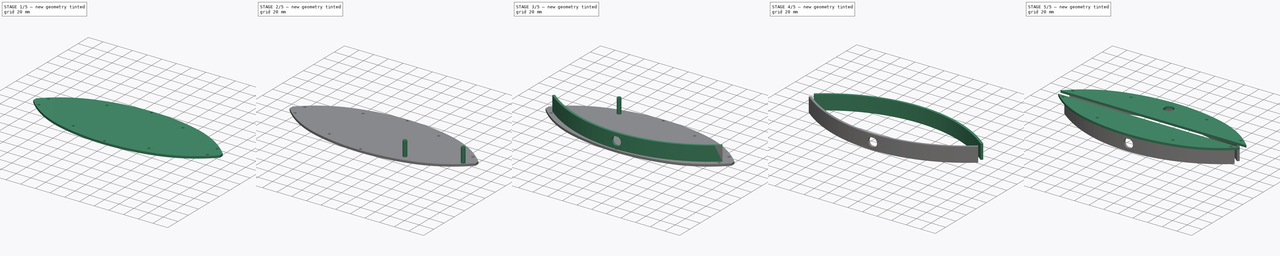
[diagram: build sequence overview — one tinted view per stage of 5, left to right]
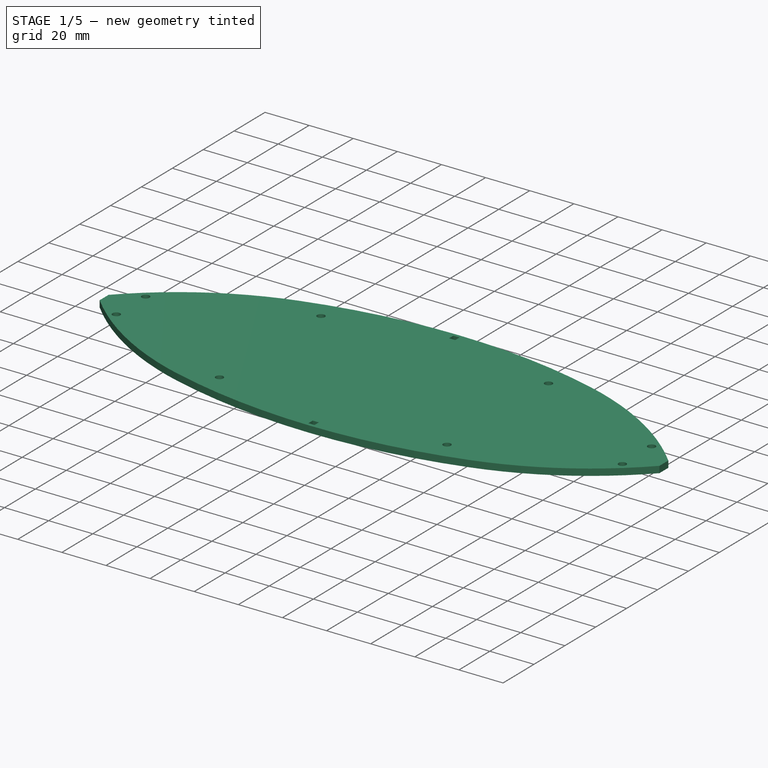
[diagram: stage 1 of 5 — iso view after this stage's code; geometry added in this stage tinted green]
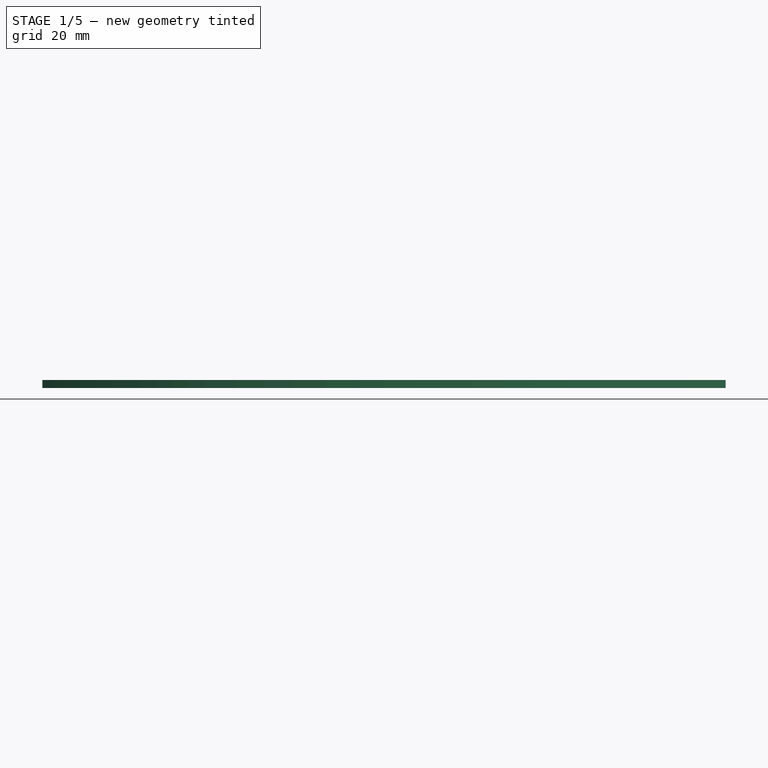
[diagram: stage 1 of 5 — front view after this stage's code; geometry added in this stage tinted green]
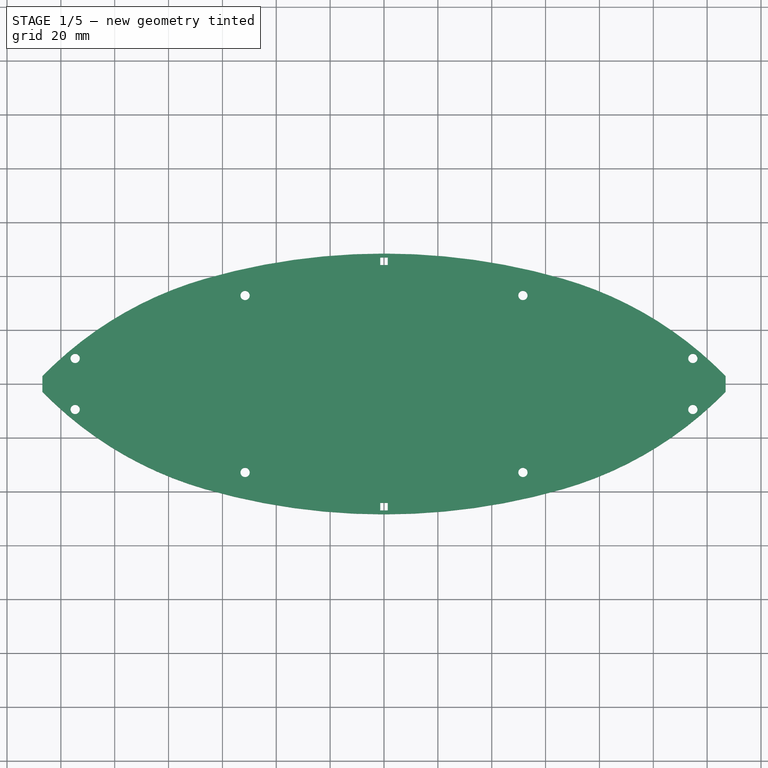
[diagram: stage 1 of 5 — top view after this stage's code; geometry added in this stage tinted green]
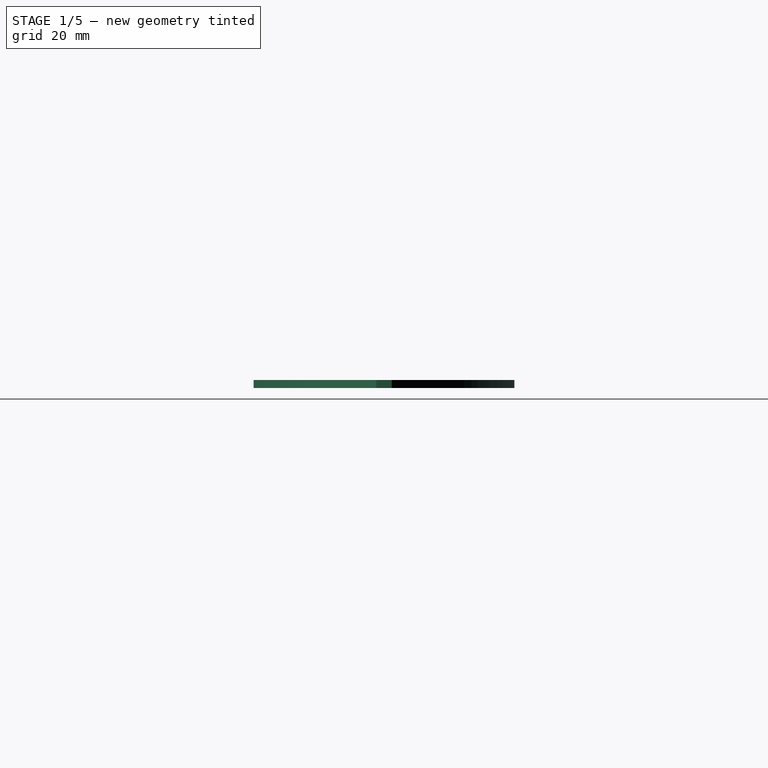
[diagram: stage 1 of 5 — right view after this stage's code; geometry added in this stage tinted green]
FCSTD DOCUMENT  (FreeCAD 0.19R22611 (Git))
Label: halo_01
License: All rights reserved
LicenseURL: http://en.wikipedia.org/wiki/All_rights_reserved
objects: Sketcher::SketchObject×44, Part::Feature×31, PartDesign::ShapeBinder×14, PartDesign::Body×11, PartDesign::Pad×9, App::DocumentObjectGroup×5, PartDesign::Pocket×4, Part::Mirroring×4, PartDesign::Mirrored×2, PartDesign::MultiTransform×1, Part::Cut×1, Part::Part2DObjectPython×1
note: 135 computed .brp shape members not serialized (recipe doc carries the construction recipe); baked Part::Feature solids carry a one-line shape summary decoded from their .brp

FEATURE [Part::Feature] path4080
  shape: bbox 12.86 x 11.4 x 2e-07 mm, 0 faces, 0 solids (baked)
FEATURE [Part::Feature] path5664
  shape: bbox 253.7 x 45.54 x 2e-07 mm, 0 faces, 0 solids (baked)
FEATURE [Part::Feature] path5666
  shape: bbox 253.7 x 45.54 x 2e-07 mm, 0 faces, 0 solids (baked)
FEATURE [Part::Feature] path5674
  shape: bbox 3.433 x 3.433 x 2e-07 mm, 0 faces, 0 solids (baked)
FEATURE [Part::Feature] path5676
  shape: bbox 3.433 x 3.433 x 2e-07 mm, 0 faces, 0 solids (baked)
FEATURE [Part::Feature] path5680
  shape: bbox 3.433 x 3.433 x 2e-07 mm, 0 faces, 0 solids (baked)
FEATURE [Part::Feature] path5682
  shape: bbox 3.433 x 3.433 x 2e-07 mm, 0 faces, 0 solids (baked)
FEATURE [Part::Feature] path5688
  shape: bbox 3.433 x 3.433 x 2e-07 mm, 0 faces, 0 solids (baked)
FEATURE [Part::Feature] path5690
  shape: bbox 3.433 x 3.433 x 2e-07 mm, 0 faces, 0 solids (baked)
FEATURE [Part::Feature] path5694
  shape: bbox 3.433 x 3.433 x 2e-07 mm, 0 faces, 0 solids (baked)
FEATURE [Part::Feature] path5696
  shape: bbox 3.433 x 3.433 x 2e-07 mm, 0 faces, 0 solids (baked)
FEATURE [Part::Feature] path5698
  shape: bbox 2e-07 x 5.846 x 2e-07 mm, 0 faces, 0 solids (baked)
FEATURE [Part::Feature] path5700
  shape: bbox 2e-07 x 5.846 x 2e-07 mm, 0 faces, 0 solids (baked)
FEATURE [Part::Feature] path5702
  shape: bbox 12.61 x 13.97 x 2e-07 mm, 0 faces, 0 solids (baked)
FEATURE [Part::Feature] path4884
  shape: bbox 253.7 x 45.54 x 2e-07 mm, 0 faces, 0 solids (baked)
FEATURE [Part::Feature] path4886
  shape: bbox 253.7 x 45.54 x 2e-07 mm, 0 faces, 0 solids (baked)
FEATURE [Part::Feature] path4906
  shape: bbox 3.433 x 3.433 x 2e-07 mm, 0 faces, 0 solids (baked)
FEATURE [Part::Feature] path4908
  shape: bbox 3.433 x 3.433 x 2e-07 mm, 0 faces, 0 solids (baked)
FEATURE [Part::Feature] path4922
  shape: bbox 3.433 x 3.433 x 2e-07 mm, 0 faces, 0 solids (baked)
FEATURE [Part::Feature] path4924
  shape: bbox 3.433 x 3.433 x 2e-07 mm, 0 faces, 0 solids (baked)
FEATURE [Part::Feature] path4946
  shape: bbox 3.433 x 3.433 x 2e-07 mm, 0 faces, 0 solids (baked)
FEATURE [Part::Feature] path4948
  shape: bbox 3.433 x 3.433 x 2e-07 mm, 0 faces, 0 solids (baked)
FEATURE [Part::Feature] path4952
  shape: bbox 3.433 x 3.433 x 2e-07 mm, 0 faces, 0 solids (baked)
FEATURE [Part::Feature] path4954
  shape: bbox 3.433 x 3.433 x 2e-07 mm, 0 faces, 0 solids (baked)
FEATURE [Part::Feature] path4972
  shape: bbox 2e-07 x 5.846 x 2e-07 mm, 0 faces, 0 solids (baked)
FEATURE [Part::Feature] path4976
  shape: bbox 2e-07 x 5.846 x 2e-07 mm, 0 faces, 0 solids (baked)
FEATURE [Sketcher::SketchObject] Sketch
  sketch-geometry (2):
    g0: BSplineCurve PolesCount=3 KnotsCount=2 Degree=2 IsPeriodic=0
    g1: BSplineCurve PolesCount=3 KnotsCount=2 Degree=2 IsPeriodic=0
  constraints (1):
    c: Coincident(g0,g1)
FEATURE [Sketcher::SketchObject] Sketch001
  sketch-geometry (2):
    g0: BSplineCurve PolesCount=3 KnotsCount=2 Degree=2 IsPeriodic=0
    g1: BSplineCurve PolesCount=3 KnotsCount=2 Degree=2 IsPeriodic=0
  constraints (1):
    c: Coincident(g0,g1)
FEATURE [Sketcher::SketchObject] Sketch002
  sketch-geometry (6):
    g0: BSplineCurve PolesCount=3 KnotsCount=2 Degree=2 IsPeriodic=0
    g1: BSplineCurve PolesCount=3 KnotsCount=2 Degree=2 IsPeriodic=0
    g2: BSplineCurve PolesCount=3 KnotsCount=2 Degree=2 IsPeriodic=0
    g3: BSplineCurve PolesCount=3 KnotsCount=2 Degree=2 IsPeriodic=0
    g4: LineSegment StartX=240.484 StartY=-136.172 StartZ=0 EndX=242.2 EndY=-136.172 EndZ=0
    g5: LineSegment StartX=242.2 StartY=-134.456 StartZ=0 EndX=242.2 EndY=-137.889 EndZ=0
  constraints (5):
    c: Coincident(g0,g1)
    c: Coincident(g1,g2)
    c: Coincident(g2,g3)
    c: Coincident(g3,g0)
    c: PointOnObject(g4,g5)
FEATURE [Sketcher::SketchObject] Sketch003
  sketch-geometry (6):
    g0: BSplineCurve PolesCount=3 KnotsCount=2 Degree=2 IsPeriodic=0
    g1: BSplineCurve PolesCount=3 KnotsCount=2 Degree=2 IsPeriodic=0
    g2: BSplineCurve PolesCount=3 KnotsCount=2 Degree=2 IsPeriodic=0
    g3: BSplineCurve PolesCount=3 KnotsCount=2 Degree=2 IsPeriodic=0
    g4: LineSegment StartX=177.387 StartY=-112.788 StartZ=0 EndX=179.104 EndY=-112.788 EndZ=0
    g5: LineSegment StartX=179.104 StartY=-111.072 StartZ=0 EndX=179.104 EndY=-114.505 EndZ=0
  constraints (5):
    c: Coincident(g0,g1)
    c: Coincident(g1,g2)
    c: Coincident(g2,g3)
    c: Coincident(g3,g0)
    c: PointOnObject(g4,g5)
FEATURE [Sketcher::SketchObject] Sketch004
  sketch-geometry (6):
    g0: BSplineCurve PolesCount=3 KnotsCount=2 Degree=2 IsPeriodic=0
    g1: BSplineCurve PolesCount=3 KnotsCount=2 Degree=2 IsPeriodic=0
    g2: BSplineCurve PolesCount=3 KnotsCount=2 Degree=2 IsPeriodic=0
    g3: BSplineCurve PolesCount=3 KnotsCount=2 Degree=2 IsPeriodic=0
    g4: LineSegment StartX=11.1178 StartY=-136.172 StartZ=0 EndX=12.8344 EndY=-136.172 EndZ=0
    g5: LineSegment StartX=12.8344 StartY=-134.456 StartZ=0 EndX=12.8344 EndY=-137.889 EndZ=0
  constraints (5):
    c: Coincident(g0,g1)
    c: Coincident(g1,g2)
    c: Coincident(g2,g3)
    c: Coincident(g3,g0)
    c: PointOnObject(g4,g5)
FEATURE [Sketcher::SketchObject] Sketch005
  sketch-geometry (6):
    g0: BSplineCurve PolesCount=3 KnotsCount=2 Degree=2 IsPeriodic=0
    g1: BSplineCurve PolesCount=3 KnotsCount=2 Degree=2 IsPeriodic=0
    g2: BSplineCurve PolesCount=3 KnotsCount=2 Degree=2 IsPeriodic=0
    g3: BSplineCurve PolesCount=3 KnotsCount=2 Degree=2 IsPeriodic=0
    g4: LineSegment StartX=74.2146 StartY=-112.788 StartZ=0 EndX=75.9312 EndY=-112.788 EndZ=0
    g5: LineSegment StartX=75.9312 StartY=-111.072 StartZ=0 EndX=75.9312 EndY=-114.505 EndZ=0
  constraints (5):
    c: Coincident(g0,g1)
    c: Coincident(g1,g2)
    c: Coincident(g2,g3)
    c: Coincident(g3,g0)
    c: PointOnObject(g4,g5)
FEATURE [Sketcher::SketchObject] Sketch006
  sketch-geometry (6):
    g0: BSplineCurve PolesCount=3 KnotsCount=2 Degree=2 IsPeriodic=0
    g1: BSplineCurve PolesCount=3 KnotsCount=2 Degree=2 IsPeriodic=0
    g2: BSplineCurve PolesCount=3 KnotsCount=2 Degree=2 IsPeriodic=0
    g3: BSplineCurve PolesCount=3 KnotsCount=2 Degree=2 IsPeriodic=0
    g4: LineSegment StartX=240.484 StartY=-155.121 StartZ=0 EndX=242.2 EndY=-155.121 EndZ=0
    g5: LineSegment StartX=242.2 StartY=-153.405 StartZ=0 EndX=242.2 EndY=-156.838 EndZ=0
  constraints (5):
    c: Coincident(g0,g1)
    c: Coincident(g1,g2)
    c: Coincident(g2,g3)
    c: Coincident(g3,g0)
    c: PointOnObject(g4,g5)
FEATURE [Sketcher::SketchObject] Sketch007
  sketch-geometry (6):
    g0: BSplineCurve PolesCount=3 KnotsCount=2 Degree=2 IsPeriodic=0
    g1: BSplineCurve PolesCount=3 KnotsCount=2 Degree=2 IsPeriodic=0
    g2: BSplineCurve PolesCount=3 KnotsCount=2 Degree=2 IsPeriodic=0
    g3: BSplineCurve PolesCount=3 KnotsCount=2 Degree=2 IsPeriodic=0
    g4: LineSegment StartX=177.387 StartY=-178.506 StartZ=0 EndX=179.104 EndY=-178.506 EndZ=0
    g5: LineSegment StartX=179.104 StartY=-176.789 StartZ=0 EndX=179.104 EndY=-180.222 EndZ=0
  constraints (5):
    c: Coincident(g0,g1)
    c: Coincident(g1,g2)
    c: Coincident(g2,g3)
    c: Coincident(g3,g0)
    c: PointOnObject(g4,g5)
FEATURE [Sketcher::SketchObject] Sketch008
  sketch-geometry (6):
    g0: BSplineCurve PolesCount=3 KnotsCount=2 Degree=2 IsPeriodic=0
    g1: BSplineCurve PolesCount=3 KnotsCount=2 Degree=2 IsPeriodic=0
    g2: BSplineCurve PolesCount=3 KnotsCount=2 Degree=2 IsPeriodic=0
    g3: BSplineCurve PolesCount=3 KnotsCount=2 Degree=2 IsPeriodic=0
    g4: LineSegment StartX=11.1178 StartY=-155.121 StartZ=0 EndX=12.8344 EndY=-155.121 EndZ=0
    g5: LineSegment StartX=12.8344 StartY=-153.405 StartZ=0 EndX=12.8344 EndY=-156.838 EndZ=0
  constraints (5):
    c: Coincident(g0,g1)
    c: Coincident(g1,g2)
    c: Coincident(g2,g3)
    c: Coincident(g3,g0)
    c: PointOnObject(g4,g5)
FEATURE [Sketcher::SketchObject] Sketch009
  sketch-geometry (6):
    g0: BSplineCurve PolesCount=3 KnotsCount=2 Degree=2 IsPeriodic=0
    g1: BSplineCurve PolesCount=3 KnotsCount=2 Degree=2 IsPeriodic=0
    g2: BSplineCurve PolesCount=3 KnotsCount=2 Degree=2 IsPeriodic=0
    g3: BSplineCurve PolesCount=3 KnotsCount=2 Degree=2 IsPeriodic=0
    g4: LineSegment StartX=74.2146 StartY=-178.506 StartZ=0 EndX=75.9312 EndY=-178.506 EndZ=0
    g5: LineSegment StartX=75.9312 StartY=-176.789 StartZ=0 EndX=75.9312 EndY=-180.222 EndZ=0
  constraints (5):
    c: Coincident(g0,g1)
    c: Coincident(g1,g2)
    c: Coincident(g2,g3)
    c: Coincident(g3,g0)
    c: PointOnObject(g4,g5)
FEATURE [Sketcher::SketchObject] Sketch010
  sketch-geometry (6):
    g0: BSplineCurve PolesCount=2 KnotsCount=2 Degree=1 IsPeriodic=0
    g1: BSplineCurve PolesCount=2 KnotsCount=2 Degree=1 IsPeriodic=0
    g2: BSplineCurve PolesCount=2 KnotsCount=2 Degree=1 IsPeriodic=0
    g3: BSplineCurve PolesCount=2 KnotsCount=2 Degree=1 IsPeriodic=0
    g4: LineSegment StartX=126.126 StartY=-189.804 StartZ=0 EndX=128.909 EndY=-192.587 EndZ=0
    g5: LineSegment StartX=126.126 StartY=-192.587 StartZ=0 EndX=127.517 EndY=-191.196 EndZ=0
  constraints (5):
    c: Coincident(g0,g1)
    c: Coincident(g1,g2)
    c: Coincident(g2,g3)
    c: Coincident(g3,g0)
    c: PointOnObject(g5,g4)
FEATURE [Part::Feature] Face
  shape: bbox 2.783 x 2.783 x 2e-07 mm, 1 faces, 0 solids (baked)
FEATURE [Part::Feature] Face001
  shape: bbox 2.783 x 2.783 x 2e-07 mm, 1 faces, 0 solids (baked)
FEATURE [Sketcher::SketchObject] Sketch011
  sketch-geometry (6):
    g0: BSplineCurve PolesCount=2 KnotsCount=2 Degree=1 IsPeriodic=0
    g1: BSplineCurve PolesCount=2 KnotsCount=2 Degree=1 IsPeriodic=0
    g2: BSplineCurve PolesCount=2 KnotsCount=2 Degree=1 IsPeriodic=0
    g3: BSplineCurve PolesCount=2 KnotsCount=2 Degree=1 IsPeriodic=0
    g4: LineSegment StartX=126.126 StartY=-98.7065 StartZ=0 EndX=128.909 EndY=-101.489 EndZ=0
    g5: LineSegment StartX=126.126 StartY=-101.489 StartZ=0 EndX=127.517 EndY=-100.098 EndZ=0
  constraints (5):
    c: Coincident(g0,g1)
    c: Coincident(g1,g2)
    c: Coincident(g2,g3)
    c: Coincident(g3,g0)
    c: PointOnObject(g5,g4)
FEATURE [App::DocumentObjectGroup] Group  label="Group_bottom"
  Group = -> [Face001,Face,path4884,path4886,path4906,path4908,path4922,path4924,path4946,path4948,path4952,path4954,path4972,path4976]
FEATURE [Part::Feature] Face002
  shape: bbox 247.9 x 22.51 x 2e-07 mm, 1 faces, 0 solids (baked)
FEATURE [Sketcher::SketchObject] Sketch012
  sketch-geometry (10):
    g0: BSplineCurve PolesCount=2 KnotsCount=2 Degree=1 IsPeriodic=0
    g1: BSplineCurve PolesCount=2 KnotsCount=2 Degree=1 IsPeriodic=0
    g2: BSplineCurve PolesCount=2 KnotsCount=2 Degree=1 IsPeriodic=0
    g3: BSplineCurve PolesCount=2 KnotsCount=2 Degree=1 IsPeriodic=0
    g4: BSplineCurve PolesCount=2 KnotsCount=2 Degree=1 IsPeriodic=0
    g5: BSplineCurve PolesCount=2 KnotsCount=2 Degree=1 IsPeriodic=0
    g6: BSplineCurve PolesCount=2 KnotsCount=2 Degree=1 IsPeriodic=0
    g7: BSplineCurve PolesCount=2 KnotsCount=2 Degree=1 IsPeriodic=0
    g8: BSplineCurve PolesCount=2 KnotsCount=2 Degree=1 IsPeriodic=0
    g9: BSplineCurve PolesCount=2 KnotsCount=2 Degree=1 IsPeriodic=0
  constraints (11):
    c: Coincident(g0,g1)
    c: Coincident(g1,g2)
    c: Coincident(g2,g3)
    c: Coincident(g3,g4)
    c: Coincident(g4,g5)
    c: Coincident(g5,g6)
    c: Coincident(g6,g7)
    c: Coincident(g7,g8)
    c: Coincident(g8,g9)
    c: Coincident(g9,g0)
    c: DistanceX(g8,g5) = 247.86
FEATURE [Sketcher::SketchObject] Sketch013
  sketch-geometry (8):
    g0: BSplineCurve PolesCount=4 KnotsCount=2 Degree=3 IsPeriodic=0
    g1: BSplineCurve PolesCount=4 KnotsCount=2 Degree=3 IsPeriodic=0
    g2: BSplineCurve PolesCount=2 KnotsCount=2 Degree=1 IsPeriodic=0
    g3: BSplineCurve PolesCount=4 KnotsCount=2 Degree=3 IsPeriodic=0
    g4: BSplineCurve PolesCount=4 KnotsCount=2 Degree=3 IsPeriodic=0
    g5: BSplineCurve PolesCount=2 KnotsCount=2 Degree=1 IsPeriodic=0
    g6: LineSegment [constr] StartX=121.345 StartY=-203.299 StartZ=0 EndX=121.345 EndY=-210.784 EndZ=0
    g7: LineSegment [constr] StartX=133.675 StartY=-203.299 StartZ=0 EndX=133.675 EndY=-210.784 EndZ=0
  constraints (19):
    c: Coincident(g0,g1)
    c: Coincident(g1,g2)
    c: Coincident(g2,g3)
    c: Coincident(g3,g4)
    c: Coincident(g4,g5)
    c: Coincident(g5,g0)
    c: DistanceY(g0,g1) = 11.4
    c: DistanceX(g0,g4) = 4.6
    c: Block(g1)
    c: Block(g0)
    c: Block(g3)
    c: Block(g4)
    c: Block(g2)
    c: Block(g5)
    c: Vertical(g7)
    c: Vertical(g6)
    c: Equal(g6,g7)
    c: DistanceY(g7,g6) = 0
    c: DistanceX(g6,g7) = 12.33
FEATURE [App::DocumentObjectGroup] Group001  label="Group_back"
  Group = -> [Face002,path4080]
FEATURE [PartDesign::Body] Body001  label="Body_back"
  Group = -> [Sketch012,Sketch013]
  Origin = -> Origin001
FEATURE [Part::Feature] Face003
  shape: bbox 247.9 x 22.51 x 2e-07 mm, 1 faces, 0 solids (baked)
FEATURE [Sketcher::SketchObject] Sketch014
  sketch-geometry (10):
    g0: BSplineCurve PolesCount=2 KnotsCount=2 Degree=1 IsPeriodic=0
    g1: BSplineCurve PolesCount=2 KnotsCount=2 Degree=1 IsPeriodic=0
    g2: BSplineCurve PolesCount=2 KnotsCount=2 Degree=1 IsPeriodic=0
    g3: BSplineCurve PolesCount=2 KnotsCount=2 Degree=1 IsPeriodic=0
    g4: BSplineCurve PolesCount=2 KnotsCount=2 Degree=1 IsPeriodic=0
    g5: BSplineCurve PolesCount=2 KnotsCount=2 Degree=1 IsPeriodic=0
    g6: BSplineCurve PolesCount=2 KnotsCount=2 Degree=1 IsPeriodic=0
    g7: BSplineCurve PolesCount=2 KnotsCount=2 Degree=1 IsPeriodic=0
    g8: BSplineCurve PolesCount=2 KnotsCount=2 Degree=1 IsPeriodic=0
    g9: BSplineCurve PolesCount=2 KnotsCount=2 Degree=1 IsPeriodic=0
  constraints (10):
    c: Coincident(g0,g1)
    c: Coincident(g1,g2)
    c: Coincident(g2,g3)
    c: Coincident(g3,g4)
    c: Coincident(g4,g5)
    c: Coincident(g5,g6)
    c: Coincident(g6,g7)
    c: Coincident(g7,g8)
    c: Coincident(g8,g9)
    c: Coincident(g9,g0)
FEATURE [App::DocumentObjectGroup] Group002  label="Group_frnt"
  Group = -> [Face003]
FEATURE [PartDesign::Body] Body002  label="Body_frnt"
  Group = -> [Sketch014]
  Origin = -> Origin002
FEATURE [Sketcher::SketchObject] Sketch015
  sketch-geometry (2):
    g0: BSplineCurve PolesCount=3 KnotsCount=2 Degree=2 IsPeriodic=0
    g1: BSplineCurve PolesCount=3 KnotsCount=2 Degree=2 IsPeriodic=0
  constraints (1):
    c: Coincident(g0,g1)
FEATURE [Sketcher::SketchObject] Sketch016
  sketch-geometry (2):
    g0: BSplineCurve PolesCount=3 KnotsCount=2 Degree=2 IsPeriodic=0
    g1: BSplineCurve PolesCount=3 KnotsCount=2 Degree=2 IsPeriodic=0
  constraints (1):
    c: Coincident(g0,g1)
FEATURE [Sketcher::SketchObject] Sketch017
  sketch-geometry (4):
    g0: BSplineCurve PolesCount=3 KnotsCount=2 Degree=2 IsPeriodic=0
    g1: BSplineCurve PolesCount=3 KnotsCount=2 Degree=2 IsPeriodic=0
    g2: BSplineCurve PolesCount=3 KnotsCount=2 Degree=2 IsPeriodic=0
    g3: BSplineCurve PolesCount=3 KnotsCount=2 Degree=2 IsPeriodic=0
  constraints (4):
    c: Coincident(g0,g1)
    c: Coincident(g1,g2)
    c: Coincident(g2,g3)
    c: Coincident(g3,g0)
FEATURE [Sketcher::SketchObject] Sketch018
  sketch-geometry (4):
    g0: BSplineCurve PolesCount=3 KnotsCount=2 Degree=2 IsPeriodic=0
    g1: BSplineCurve PolesCount=3 KnotsCount=2 Degree=2 IsPeriodic=0
    g2: BSplineCurve PolesCount=3 KnotsCount=2 Degree=2 IsPeriodic=0
    g3: BSplineCurve PolesCount=3 KnotsCount=2 Degree=2 IsPeriodic=0
  constraints (4):
    c: Coincident(g0,g1)
    c: Coincident(g1,g2)
    c: Coincident(g2,g3)
    c: Coincident(g3,g0)
FEATURE [Sketcher::SketchObject] Sketch019
  sketch-geometry (4):
    g0: BSplineCurve PolesCount=3 KnotsCount=2 Degree=2 IsPeriodic=0
    g1: BSplineCurve PolesCount=3 KnotsCount=2 Degree=2 IsPeriodic=0
    g2: BSplineCurve PolesCount=3 KnotsCount=2 Degree=2 IsPeriodic=0
    g3: BSplineCurve PolesCount=3 KnotsCount=2 Degree=2 IsPeriodic=0
  constraints (4):
    c: Coincident(g0,g1)
    c: Coincident(g1,g2)
    c: Coincident(g2,g3)
    c: Coincident(g3,g0)
FEATURE [Sketcher::SketchObject] Sketch020
  sketch-geometry (4):
    g0: BSplineCurve PolesCount=3 KnotsCount=2 Degree=2 IsPeriodic=0
    g1: BSplineCurve PolesCount=3 KnotsCount=2 Degree=2 IsPeriodic=0
    g2: BSplineCurve PolesCount=3 KnotsCount=2 Degree=2 IsPeriodic=0
    g3: BSplineCurve PolesCount=3 KnotsCount=2 Degree=2 IsPeriodic=0
  constraints (4):
    c: Coincident(g0,g1)
    c: Coincident(g1,g2)
    c: Coincident(g2,g3)
    c: Coincident(g3,g0)
FEATURE [Sketcher::SketchObject] Sketch021
  sketch-geometry (4):
    g0: BSplineCurve PolesCount=3 KnotsCount=2 Degree=2 IsPeriodic=0
    g1: BSplineCurve PolesCount=3 KnotsCount=2 Degree=2 IsPeriodic=0
    g2: BSplineCurve PolesCount=3 KnotsCount=2 Degree=2 IsPeriodic=0
    g3: BSplineCurve PolesCount=3 KnotsCount=2 Degree=2 IsPeriodic=0
  constraints (4):
    c: Coincident(g0,g1)
    c: Coincident(g1,g2)
    c: Coincident(g2,g3)
    c: Coincident(g3,g0)
FEATURE [Sketcher::SketchObject] Sketch022
  sketch-geometry (4):
    g0: BSplineCurve PolesCount=3 KnotsCount=2 Degree=2 IsPeriodic=0
    g1: BSplineCurve PolesCount=3 KnotsCount=2 Degree=2 IsPeriodic=0
    g2: BSplineCurve PolesCount=3 KnotsCount=2 Degree=2 IsPeriodic=0
    g3: BSplineCurve PolesCount=3 KnotsCount=2 Degree=2 IsPeriodic=0
  constraints (4):
    c: Coincident(g0,g1)
    c: Coincident(g1,g2)
    c: Coincident(g2,g3)
    c: Coincident(g3,g0)
FEATURE [Sketcher::SketchObject] Sketch023
  sketch-geometry (4):
    g0: BSplineCurve PolesCount=3 KnotsCount=2 Degree=2 IsPeriodic=0
    g1: BSplineCurve PolesCount=3 KnotsCount=2 Degree=2 IsPeriodic=0
    g2: BSplineCurve PolesCount=3 KnotsCount=2 Degree=2 IsPeriodic=0
    g3: BSplineCurve PolesCount=3 KnotsCount=2 Degree=2 IsPeriodic=0
  constraints (4):
    c: Coincident(g0,g1)
    c: Coincident(g1,g2)
    c: Coincident(g2,g3)
    c: Coincident(g3,g0)
FEATURE [Sketcher::SketchObject] Sketch024
  sketch-geometry (4):
    g0: BSplineCurve PolesCount=3 KnotsCount=2 Degree=2 IsPeriodic=0
    g1: BSplineCurve PolesCount=3 KnotsCount=2 Degree=2 IsPeriodic=0
    g2: BSplineCurve PolesCount=3 KnotsCount=2 Degree=2 IsPeriodic=0
    g3: BSplineCurve PolesCount=3 KnotsCount=2 Degree=2 IsPeriodic=0
  constraints (4):
    c: Coincident(g0,g1)
    c: Coincident(g1,g2)
    c: Coincident(g2,g3)
    c: Coincident(g3,g0)
FEATURE [Sketcher::SketchObject] Sketch025
  sketch-geometry (5):
    g0: BSplineCurve PolesCount=4 KnotsCount=2 Degree=3 IsPeriodic=0
    g1: BSplineCurve PolesCount=4 KnotsCount=2 Degree=3 IsPeriodic=0
    g2: BSplineCurve PolesCount=4 KnotsCount=2 Degree=3 IsPeriodic=0
    g3: BSplineCurve PolesCount=4 KnotsCount=2 Degree=3 IsPeriodic=0
    g4: BSplineCurve PolesCount=2 KnotsCount=2 Degree=1 IsPeriodic=0
  constraints (5):
    c: Coincident(g0,g1)
    c: Coincident(g1,g2)
    c: Coincident(g2,g3)
    c: Coincident(g3,g4)
    c: Coincident(g4,g0)
FEATURE [Part::Feature] Face004
  shape: bbox 254.9 x 8.731 x 2e-07 mm, 1 faces, 0 solids (baked)
FEATURE [Sketcher::SketchObject] Sketch026
  sketch-geometry (4):
    g0: BSplineCurve PolesCount=2 KnotsCount=2 Degree=1 IsPeriodic=0
    g1: BSplineCurve PolesCount=2 KnotsCount=2 Degree=1 IsPeriodic=0
    g2: BSplineCurve PolesCount=2 KnotsCount=2 Degree=1 IsPeriodic=0
    g3: BSplineCurve PolesCount=2 KnotsCount=2 Degree=1 IsPeriodic=0
  constraints (4):
    c: Coincident(g0,g1)
    c: Coincident(g1,g2)
    c: Coincident(g2,g3)
    c: Coincident(g3,g0)
FEATURE [App::DocumentObjectGroup] Group003  label="Group_top"
  Group = -> [Face004,path5664,path5666,path5674,path5676,path5680,path5682,path5688,path5690,path5694,path5696,path5698,path5700,path5702]
FEATURE [App::DocumentObjectGroup] Group004  label="Group_SVGs"
  Group = -> [Group,Group001,Group002,Group003]
FEATURE [Sketcher::SketchObject] Sketch027
  sketch-geometry (11):
    g0: BSplineCurve PolesCount=3 KnotsCount=2 Degree=2 IsPeriodic=0
    g1: BSplineCurve PolesCount=3 KnotsCount=2 Degree=2 IsPeriodic=0
    g2: BSplineCurve PolesCount=3 KnotsCount=2 Degree=2 IsPeriodic=0
    g3: BSplineCurve PolesCount=3 KnotsCount=2 Degree=2 IsPeriodic=0
    g4: LineSegment StartX=0.646382 StartY=-142.768 StartZ=0 EndX=0.646382 EndY=-145.647 EndZ=0
    g5: LineSegment StartX=0.646382 StartY=-145.647 StartZ=0 EndX=0.646382 EndY=-148.526 EndZ=0
    g6: LineSegment StartX=254.388 StartY=-142.768 StartZ=0 EndX=254.388 EndY=-145.647 EndZ=0
    g7: LineSegment StartX=254.388 StartY=-145.647 StartZ=0 EndX=254.388 EndY=-148.526 EndZ=0
    g8: LineSegment StartX=0.646382 StartY=-145.647 StartZ=0 EndX=254.388 EndY=-145.647 EndZ=0
    g9: LineSegment StartX=127.517 StartY=-97.2269 StartZ=0 EndX=127.517 EndY=-145.647 EndZ=0
    g10: LineSegment StartX=127.517 StartY=-194.067 StartZ=0 EndX=127.517 EndY=-145.647 EndZ=0
  constraints (19):
    c: Coincident(g0,g1)
    c: Coincident(g2,g3)
    c: Coincident(g4,g1)
    c: Vertical(g4)
    c: Coincident(g5,g4)
    c: Coincident(g5,g3)
    c: Equal(g4,g5)
    c: Coincident(g6,g0)
    c: Vertical(g6)
    c: Coincident(g7,g6)
    c: Coincident(g7,g2)
    c: Equal(g6,g7)
    c: Coincident(g8,g4)
    c: Coincident(g8,g6)
    c: Coincident(g9,g0)
    c: PointOnObject(g9,g8)
    c: Vertical(g9)
    c: Coincident(g10,g2)
    c: Coincident(g10,g9)
FEATURE [Sketcher::SketchObject] Sketch028
  sketch-geometry (71):
    g0: BSplineCurve PolesCount=3 KnotsCount=2 Degree=2 IsPeriodic=0
    g1: BSplineCurve PolesCount=3 KnotsCount=2 Degree=2 IsPeriodic=0
    g2: BSplineCurve PolesCount=3 KnotsCount=2 Degree=2 IsPeriodic=0
    g3: BSplineCurve PolesCount=3 KnotsCount=2 Degree=2 IsPeriodic=0
    g4: LineSegment StartX=112.966 StartY=9.4746 StartZ=0 EndX=114.683 EndY=9.4746 EndZ=0
    g5: LineSegment StartX=114.683 StartY=11.1912 StartZ=0 EndX=114.683 EndY=7.758 EndZ=0
    g6: BSplineCurve PolesCount=3 KnotsCount=2 Degree=2 IsPeriodic=0
    g7: BSplineCurve PolesCount=3 KnotsCount=2 Degree=2 IsPeriodic=0
    g8: BSplineCurve PolesCount=3 KnotsCount=2 Degree=2 IsPeriodic=0
    g9: BSplineCurve PolesCount=3 KnotsCount=2 Degree=2 IsPeriodic=0
    g10: LineSegment StartX=49.8696 StartY=32.8587 StartZ=0 EndX=51.5862 EndY=32.8587 EndZ=0
    g11: LineSegment StartX=51.5862 StartY=34.5753 StartZ=0 EndX=51.5862 EndY=31.1421 EndZ=0
    g12: BSplineCurve PolesCount=3 KnotsCount=2 Degree=2 IsPeriodic=0
    g13: BSplineCurve PolesCount=3 KnotsCount=2 Degree=2 IsPeriodic=0
    g14: BSplineCurve PolesCount=3 KnotsCount=2 Degree=2 IsPeriodic=0
    g15: BSplineCurve PolesCount=3 KnotsCount=2 Degree=2 IsPeriodic=0
    g16: LineSegment StartX=-116.4 StartY=9.4746 StartZ=0 EndX=-114.683 EndY=9.4746 EndZ=0
    g17: LineSegment StartX=-114.683 StartY=11.1912 StartZ=0 EndX=-114.683 EndY=7.758 EndZ=0
    g18: BSplineCurve PolesCount=3 KnotsCount=2 Degree=2 IsPeriodic=0
    g19: BSplineCurve PolesCount=3 KnotsCount=2 Degree=2 IsPeriodic=0
    g20: BSplineCurve PolesCount=3 KnotsCount=2 Degree=2 IsPeriodic=0
    g21: BSplineCurve PolesCount=3 KnotsCount=2 Degree=2 IsPeriodic=0
    g22: LineSegment StartX=-53.3028 StartY=32.8587 StartZ=0 EndX=-51.5862 EndY=32.8587 EndZ=0
    g23: LineSegment StartX=-51.5862 StartY=34.5753 StartZ=0 EndX=-51.5862 EndY=31.1421 EndZ=0
    g24: BSplineCurve PolesCount=3 KnotsCount=2 Degree=2 IsPeriodic=0
    g25: BSplineCurve PolesCount=3 KnotsCount=2 Degree=2 IsPeriodic=0
    g26: BSplineCurve PolesCount=3 KnotsCount=2 Degree=2 IsPeriodic=0
    g27: BSplineCurve PolesCount=3 KnotsCount=2 Degree=2 IsPeriodic=0
    g28: LineSegment StartX=112.966 StartY=-9.47463 StartZ=0 EndX=114.683 EndY=-9.47463 EndZ=0
    g29: LineSegment StartX=114.683 StartY=-7.75803 StartZ=0 EndX=114.683 EndY=-11.1912 EndZ=0
    g30: BSplineCurve PolesCount=3 KnotsCount=2 Degree=2 IsPeriodic=0
    g31: BSplineCurve PolesCount=3 KnotsCount=2 Degree=2 IsPeriodic=0
    g32: BSplineCurve PolesCount=3 KnotsCount=2 Degree=2 IsPeriodic=0
    g33: BSplineCurve PolesCount=3 KnotsCount=2 Degree=2 IsPeriodic=0
    g34: LineSegment StartX=49.8696 StartY=-32.8588 StartZ=0 EndX=51.5862 EndY=-32.8588 EndZ=0
    g35: LineSegment StartX=51.5862 StartY=-31.1422 StartZ=0 EndX=51.5862 EndY=-34.5754 EndZ=0
    g36: BSplineCurve PolesCount=3 KnotsCount=2 Degree=2 IsPeriodic=0
    g37: BSplineCurve PolesCount=3 KnotsCount=2 Degree=2 IsPeriodic=0
    g38: BSplineCurve PolesCount=3 KnotsCount=2 Degree=2 IsPeriodic=0
    g39: BSplineCurve PolesCount=3 KnotsCount=2 Degree=2 IsPeriodic=0
    g40: LineSegment StartX=-116.4 StartY=-9.47463 StartZ=0 EndX=-114.683 EndY=-9.47463 EndZ=0
    g41: LineSegment StartX=-114.683 StartY=-7.75803 StartZ=0 EndX=-114.683 EndY=-11.1912 EndZ=0
    g42: BSplineCurve PolesCount=3 KnotsCount=2 Degree=2 IsPeriodic=0
    g43: BSplineCurve PolesCount=3 KnotsCount=2 Degree=2 IsPeriodic=0
    g44: BSplineCurve PolesCount=3 KnotsCount=2 Degree=2 IsPeriodic=0
    g45: BSplineCurve PolesCount=3 KnotsCount=2 Degree=2 IsPeriodic=0
    g46: LineSegment StartX=-53.3028 StartY=-32.8588 StartZ=0 EndX=-51.5862 EndY=-32.8588 EndZ=0
    g47: LineSegment StartX=-51.5862 StartY=-31.1422 StartZ=0 EndX=-51.5862 EndY=-34.5754 EndZ=0
    g48: BSplineCurve PolesCount=2 KnotsCount=2 Degree=1 IsPeriodic=0
    g49: BSplineCurve PolesCount=2 KnotsCount=2 Degree=1 IsPeriodic=0
    g50: BSplineCurve PolesCount=2 KnotsCount=2 Degree=1 IsPeriodic=0
    g51: BSplineCurve PolesCount=2 KnotsCount=2 Degree=1 IsPeriodic=0
    g52: LineSegment StartX=-1.39137 StartY=-44.1576 StartZ=0 EndX=1.39138 EndY=-46.9403 EndZ=0
    g53: LineSegment StartX=-1.39137 StartY=-46.9403 StartZ=0 EndX=5.5e-06 EndY=-45.5489 EndZ=0
    g54: BSplineCurve PolesCount=2 KnotsCount=2 Degree=1 IsPeriodic=0
    g55: BSplineCurve PolesCount=2 KnotsCount=2 Degree=1 IsPeriodic=0
    g56: BSplineCurve PolesCount=2 KnotsCount=2 Degree=1 IsPeriodic=0
    g57: BSplineCurve PolesCount=2 KnotsCount=2 Degree=1 IsPeriodic=0
    g58: LineSegment StartX=-1.39137 StartY=46.9403 StartZ=0 EndX=1.39138 EndY=44.1576 EndZ=0
    g59: LineSegment StartX=-1.39137 StartY=44.1576 StartZ=0 EndX=5.5e-06 EndY=45.549 EndZ=0
    g60: BSplineCurve [constr] PolesCount=3 KnotsCount=2 Degree=2 IsPeriodic=0
    g61: BSplineCurve [constr] PolesCount=3 KnotsCount=2 Degree=2 IsPeriodic=0
    g62: BSplineCurve [constr] PolesCount=3 KnotsCount=2 Degree=2 IsPeriodic=0
    g63: BSplineCurve [constr] PolesCount=3 KnotsCount=2 Degree=2 IsPeriodic=0
    g64: LineSegment [constr] StartX=-126.871 StartY=2.87897 StartZ=0 EndX=-126.871 EndY=0 EndZ=0
    g65: LineSegment [constr] StartX=-126.871 StartY=0 StartZ=0 EndX=-126.871 EndY=-2.87897 EndZ=0
    g66: LineSegment [constr] StartX=126.871 StartY=2.87897 StartZ=0 EndX=126.871 EndY=0 EndZ=0
    g67: LineSegment [constr] StartX=126.871 StartY=0 StartZ=0 EndX=126.871 EndY=-2.87897 EndZ=0
    g68: LineSegment [constr] StartX=-126.871 StartY=0 StartZ=0 EndX=126.871 EndY=0 EndZ=0
    g69: LineSegment [constr] StartX=0 StartY=48.42 StartZ=0 EndX=0 EndY=0 EndZ=0
    g70: LineSegment [constr] StartX=-4.44463e-07 StartY=-48.42 StartZ=0 EndX=0 EndY=0 EndZ=0
  constraints (70):
    c: Coincident(g0,g1)
    c: Coincident(g1,g2)
    c: Coincident(g2,g3)
    c: Coincident(g3,g0)
    c: PointOnObject(g4,g5)
    c: Coincident(g6,g7)
    c: Coincident(g7,g8)
    c: Coincident(g8,g9)
    c: Coincident(g9,g6)
    c: PointOnObject(g10,g11)
    c: Coincident(g12,g13)
    c: Coincident(g13,g14)
    c: Coincident(g14,g15)
    c: Coincident(g15,g12)
    c: PointOnObject(g16,g17)
    c: Coincident(g18,g19)
    c: Coincident(g19,g20)
    c: Coincident(g20,g21)
    c: Coincident(g21,g18)
    c: PointOnObject(g22,g23)
    c: Coincident(g24,g25)
    c: Coincident(g25,g26)
    c: Coincident(g26,g27)
    c: Coincident(g27,g24)
    c: PointOnObject(g28,g29)
    c: Coincident(g30,g31)
    c: Coincident(g31,g32)
    c: Coincident(g32,g33)
    c: Coincident(g33,g30)
    c: PointOnObject(g34,g35)
    c: Coincident(g36,g37)
    c: Coincident(g37,g38)
    c: Coincident(g38,g39)
    c: Coincident(g39,g36)
    c: PointOnObject(g40,g41)
    c: Coincident(g42,g43)
    c: Coincident(g43,g44)
    c: Coincident(g44,g45)
    c: Coincident(g45,g42)
    c: PointOnObject(g46,g47)
    c: Coincident(g48,g49)
    c: Coincident(g49,g50)
    c: Coincident(g50,g51)
    c: Coincident(g51,g48)
    c: PointOnObject(g53,g52)
    c: Coincident(g54,g55)
    c: Coincident(g55,g56)
    c: Coincident(g56,g57)
    c: Coincident(g57,g54)
    c: PointOnObject(g59,g58)
    c: Coincident(g60,g61)
    c: Coincident(g62,g63)
    c: Coincident(g64,g61)
    c: Vertical(g64)
    c: Coincident(g65,g64)
    c: Coincident(g65,g63)
    c: Equal(g64,g65)
    c: Coincident(g66,g60)
    c: Vertical(g66)
    c: Coincident(g67,g66)
    c: Coincident(g67,g62)
    c: Equal(g66,g67)
    c: Coincident(g68,g64)
    c: Coincident(g68,g66)
    c: Coincident(g69,g60)
    c: PointOnObject(g69,g68)
    c: Vertical(g69)
    c: Coincident(g70,g62)
    c: Coincident(g70,g69)
    c: Coincident(g69,g-1)
FEATURE [Sketcher::SketchObject] Sketch029
  ExternalGeometry = -> [Sketch028]
  MapMode = 5
  Support = -> [XY_Plane]
  sketch-geometry (10):
    g0: LineSegment StartX=-126.871 StartY=2.87897 StartZ=0 EndX=-126.871 EndY=-2.87897 EndZ=0
    g1: LineSegment StartX=126.871 StartY=2.87898 StartZ=0 EndX=126.871 EndY=-2.87898 EndZ=0
    g2: ArcOfCircle CenterX=-28.3526 CenterY=-93.1228 CenterZ=0 NormalX=0 NormalY=0 NormalZ=1 AngleXU=0 Radius=137.558 StartAngle=1.85005 EndAngle=2.36913
    g3: ArcOfCircle CenterX=0 CenterY=-192 CenterZ=0 NormalX=0 NormalY=0 NormalZ=1 AngleXU=0 Radius=240.42 StartAngle=1.5708 EndAngle=1.85005
    g4: ArcOfCircle CenterX=0 CenterY=-192 CenterZ=0 NormalX=0 NormalY=0 NormalZ=1 AngleXU=0 Radius=240.42 StartAngle=1.29154 EndAngle=1.5708
    g5: ArcOfCircle CenterX=28.3526 CenterY=-93.1228 CenterZ=0 NormalX=0 NormalY=0 NormalZ=1 AngleXU=0 Radius=137.558 StartAngle=0.772461 EndAngle=1.29154
    g6: ArcOfCircle CenterX=0 CenterY=192 CenterZ=0 NormalX=0 NormalY=0 NormalZ=1 AngleXU=0 Radius=240.42 StartAngle=4.43314 EndAngle=4.71239
    g7: ArcOfCircle CenterX=-28.3526 CenterY=93.1228 CenterZ=0 NormalX=0 NormalY=0 NormalZ=1 AngleXU=0 Radius=137.558 StartAngle=3.91405 EndAngle=4.43314
    g8: ArcOfCircle CenterX=28.3526 CenterY=93.1229 CenterZ=0 NormalX=0 NormalY=0 NormalZ=1 AngleXU=0 Radius=137.558 StartAngle=4.99164 EndAngle=5.51072
    g9: ArcOfCircle CenterX=0 CenterY=192 CenterZ=0 NormalX=0 NormalY=0 NormalZ=1 AngleXU=0 Radius=240.42 StartAngle=4.71239 EndAngle=4.99164
  constraints (22):
    c: Coincident(g2,g0)
    c: Tangent(g3,g2) = -1.5708
    c: Perpendicular(g3,g-2)
    c: DistanceY(g3,g-1) = 192
    c: Angle(g3) = 0.279253
    c: Tangent(g4,g5) = -1.5708
    c: Equal(g4,g3)
    c: Equal(g2,g5)
    c: Coincident(g4,g3)
    c: Perpendicular(g4,g-2)
    c: Coincident(g5,g1)
    c: Tangent(g6,g7) = -1.5708
    c: Perpendicular(g6,g-2)
    c: Coincident(g7,g0)
    c: Equal(g6,g3)
    c: Angle(g6) = 0.279253
    c: Tangent(g9,g8) = -1.5708
    c: Coincident(g6,g9)
    c: Perpendicular(g9,g-2)
    c: Coincident(g8,g1)
    c: Equal(g9,g4)
    c: Angle(g9) = 0.279253
FEATURE [PartDesign::Pad] Pad
  Direction = (1,1,1)
  Length = 3
  Length2 = 100
  Profile = -> Sketch029
  Refine = true
  Type = 0
FEATURE [Sketcher::SketchObject] Sketch030
  ExternalGeometry = -> [Sketch028]
  MapMode = 5
  Placement = pos=(0,0,3) rot=(0,0,1;0rad)
  Support = -> [Pad]
  sketch-geometry (6):
    g0: LineSegment [constr] StartX=-114.683 StartY=9.4746 StartZ=0 EndX=-114.683 EndY=0 EndZ=0
    g1: LineSegment [constr] StartX=-114.683 StartY=-9.47463 StartZ=0 EndX=-114.683 EndY=0 EndZ=0
    g2: LineSegment [constr] StartX=-51.5862 StartY=32.8587 StartZ=0 EndX=-51.5862 EndY=0 EndZ=0
    g3: LineSegment [constr] StartX=-51.5862 StartY=-32.8588 StartZ=0 EndX=-51.5862 EndY=0 EndZ=0
    g4: Circle CenterX=-114.683 CenterY=-9.47463 CenterZ=0 NormalX=0 NormalY=0 NormalZ=1 AngleXU=0 Radius=1.7166
    g5: Circle CenterX=-51.5862 CenterY=-32.8588 CenterZ=0 NormalX=0 NormalY=0 NormalZ=1 AngleXU=0 Radius=1.7166
  constraints (14):
    c: Coincident(g0,g-3)
    c: PointOnObject(g0,g-1)
    c: Vertical(g0)
    c: Coincident(g1,g-4)
    c: Coincident(g1,g0)
    c: Coincident(g2,g-6)
    c: PointOnObject(g2,g-1)
    c: Vertical(g2)
    c: Coincident(g3,g-5)
    c: Coincident(g3,g2)
    c: Coincident(g4,g1)
    c: PointOnObject(g-4,g4)
    c: Coincident(g5,g3)
    c: PointOnObject(g-5,g5)
FEATURE [PartDesign::Pocket] Pocket
  BaseFeature = -> Pad
  Length = 5
  Length2 = 100
  Profile = -> Sketch030
  Type = 1
FEATURE [PartDesign::Mirrored] Mirrored
  MirrorPlane = -> Sketch030 [V_Axis]
FEATURE [PartDesign::Mirrored] Mirrored001
  MirrorPlane = -> Sketch030 [H_Axis]
FEATURE [PartDesign::MultiTransform] MultiTransform
  BaseFeature = -> Pocket
  Originals = -> [Pocket]
  Transformations = -> [Mirrored,Mirrored001]
FEATURE [Sketcher::SketchObject] Sketch031
  ExternalGeometry = -> [Sketch028]
  MapMode = 5
  Placement = pos=(0,0,3) rot=(0,0,1;0rad)
  Support = -> [MultiTransform]
  sketch-geometry (8):
    g0: LineSegment StartX=1.39137 StartY=46.9403 StartZ=0 EndX=-1.39137 EndY=46.9403 EndZ=0
    g1: LineSegment StartX=-1.39137 StartY=46.9403 StartZ=0 EndX=-1.39137 EndY=44.1576 EndZ=0
    g2: LineSegment StartX=-1.39137 StartY=44.1576 StartZ=0 EndX=1.39137 EndY=44.1576 EndZ=0
    g3: LineSegment StartX=1.39137 StartY=44.1576 StartZ=0 EndX=1.39137 EndY=46.9403 EndZ=0
    g4: LineSegment StartX=1.39138 StartY=-44.1576 StartZ=0 EndX=-1.39137 EndY=-44.1576 EndZ=0
    g5: LineSegment StartX=-1.39137 StartY=-44.1576 StartZ=0 EndX=-1.39137 EndY=-46.9403 EndZ=0
    g6: LineSegment StartX=-1.39137 StartY=-46.9403 StartZ=0 EndX=1.39138 EndY=-46.9403 EndZ=0
    g7: LineSegment StartX=1.39138 StartY=-46.9403 StartZ=0 EndX=1.39138 EndY=-44.1576 EndZ=0
  constraints (20):
    c: Coincident(g0,g1)
    c: Coincident(g1,g2)
    c: Coincident(g2,g3)
    c: Coincident(g3,g0)
    c: Horizontal(g0)
    c: Horizontal(g2)
    c: Vertical(g1)
    c: Vertical(g3)
    c: Coincident(g0,g-5)
    c: Coincident(g1,g-6)
    c: Coincident(g4,g5)
    c: Coincident(g5,g6)
    c: Coincident(g6,g7)
    c: Coincident(g7,g4)
    c: Horizontal(g4)
    c: Horizontal(g6)
    c: Vertical(g5)
    c: Vertical(g7)
    c: Coincident(g4,g-3)
    c: Coincident(g5,g-4)
FEATURE [PartDesign::Pocket] Pocket001
  BaseFeature = -> MultiTransform
  Length = 5
  Length2 = 100
  Profile = -> Sketch031
  Type = 1
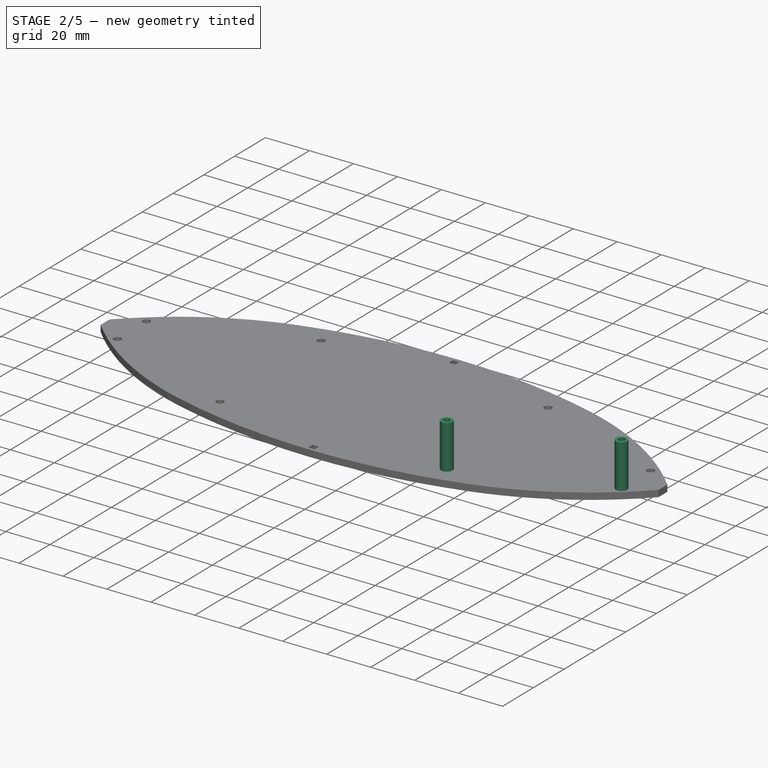
[diagram: stage 2 of 5 — iso view after this stage's code; geometry added in this stage tinted green]
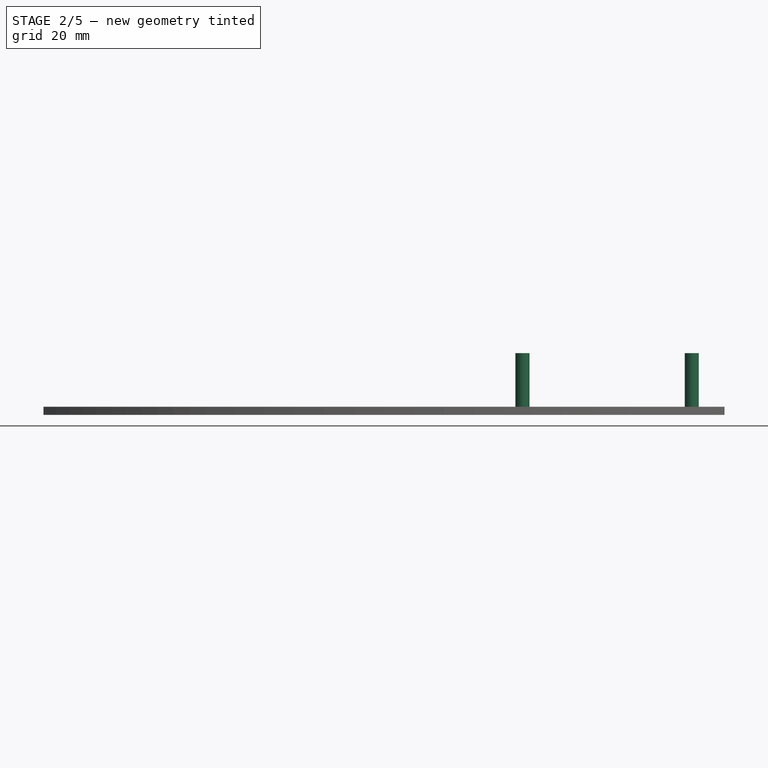
[diagram: stage 2 of 5 — front view after this stage's code; geometry added in this stage tinted green]
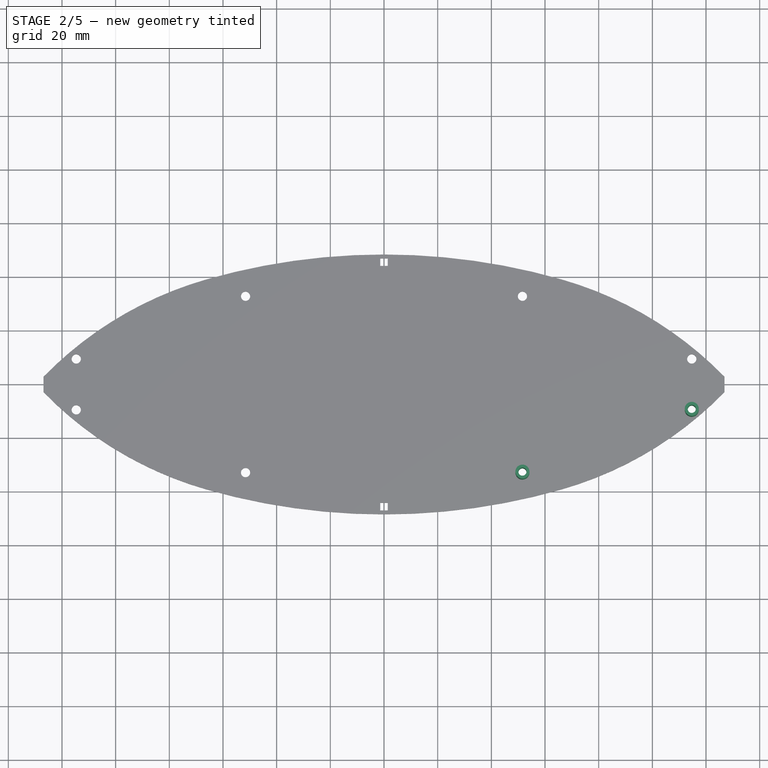
[diagram: stage 2 of 5 — top view after this stage's code; geometry added in this stage tinted green]
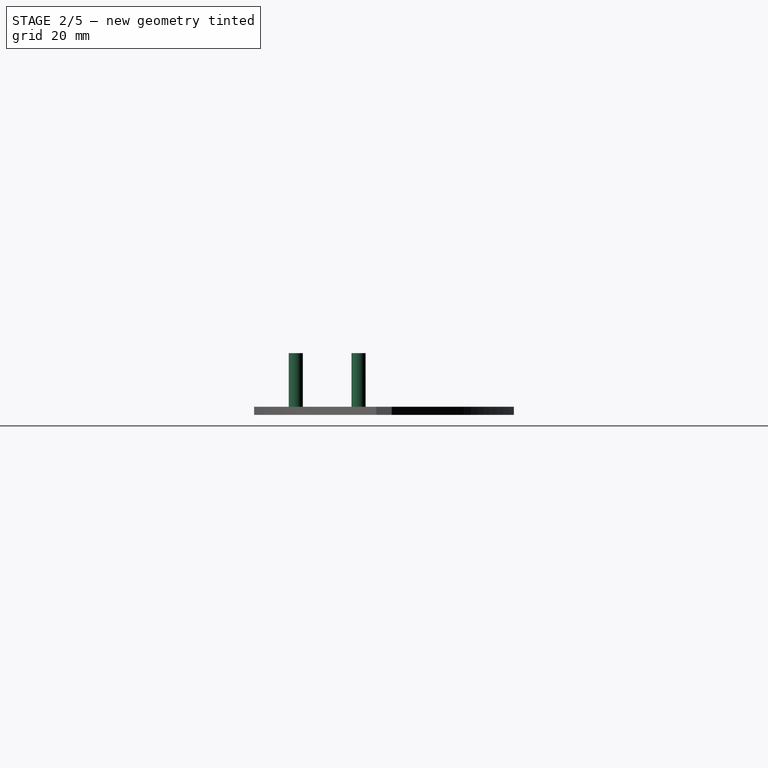
[diagram: stage 2 of 5 — right view after this stage's code; geometry added in this stage tinted green]
FEATURE [PartDesign::Body] Body004
  Group = -> [Sketch032,ShapeBinder,Pad001]
  Origin = -> Origin004
  Tip = -> Pad001
FEATURE [PartDesign::ShapeBinder] ShapeBinder001
  TraceSupport = false
FEATURE [Sketcher::SketchObject] Sketch033
  AttachmentOffset = pos=(0,0,3) rot=(0,0,1;0rad)
  ExternalGeometry = -> [ShapeBinder001]
  MapMode = 5
  Placement = pos=(0,0,3) rot=(0,0,1;0rad)
  sketch-geometry (2):
    g0: Circle CenterX=-114.683 CenterY=-9.47463 CenterZ=0 NormalX=0 NormalY=0 NormalZ=1 AngleXU=0 Radius=1.5
    g1: Circle CenterX=-114.683 CenterY=-9.47463 CenterZ=0 NormalX=0 NormalY=0 NormalZ=1 AngleXU=0 Radius=2.625
  constraints (4):
    c: Coincident(g1,g0)
    c: Diameter(g0) = 3
    c: Diameter(g1) = 5.25
    c: Coincident(g0,g-4)
FEATURE [PartDesign::Pad] Pad002
  Direction = (1,1,1)
  Length = 20
  Length2 = 100
  Placement = pos=(0,0,3) rot=(0,0,1;0rad)
  Profile = -> Sketch033
  Type = 0
FEATURE [PartDesign::Body] Body006
  Group = -> [Sketch034,ShapeBinder002,Pad003]
  Tip = -> Pad003
FEATURE [PartDesign::ShapeBinder] ShapeBinder003
  TraceSupport = false
FEATURE [Sketcher::SketchObject] Sketch035
  AttachmentOffset = pos=(0,0,3) rot=(0,0,1;0rad)
  ExternalGeometry = -> [ShapeBinder003]
  MapMode = 5
  Placement = pos=(0,0,3) rot=(0,0,1;0rad)
  sketch-geometry (2):
    g0: Circle CenterX=-51.5862 CenterY=-32.8588 CenterZ=0 NormalX=0 NormalY=0 NormalZ=1 AngleXU=0 Radius=1.5
    g1: Circle CenterX=-51.5862 CenterY=-32.8588 CenterZ=0 NormalX=0 NormalY=0 NormalZ=1 AngleXU=0 Radius=2.625
  constraints (4):
    c: Coincident(g1,g0)
    c: Diameter(g0) = 3
    c: Diameter(g1) = 5.25
    c: Coincident(g0,g-5)
FEATURE [PartDesign::Pad] Pad004
  Direction = (1,1,1)
  Length = 20
  Length2 = 100
  Placement = pos=(0,0,3) rot=(0,0,1;0rad)
  Profile = -> Sketch035
  Type = 0
FEATURE [Part::Mirroring] Part__Mirroring001  label="Body005 (Mirror #2)"
  Base = (0,0,0)
  Normal = (1,0,0)
  Source = -> Body005
FEATURE [Part::Mirroring] Part__Mirroring003  label="Body007 (Mirror #4)"
  Base = (0,0,0)
  Normal = (1,0,0)
  Source = -> Body007
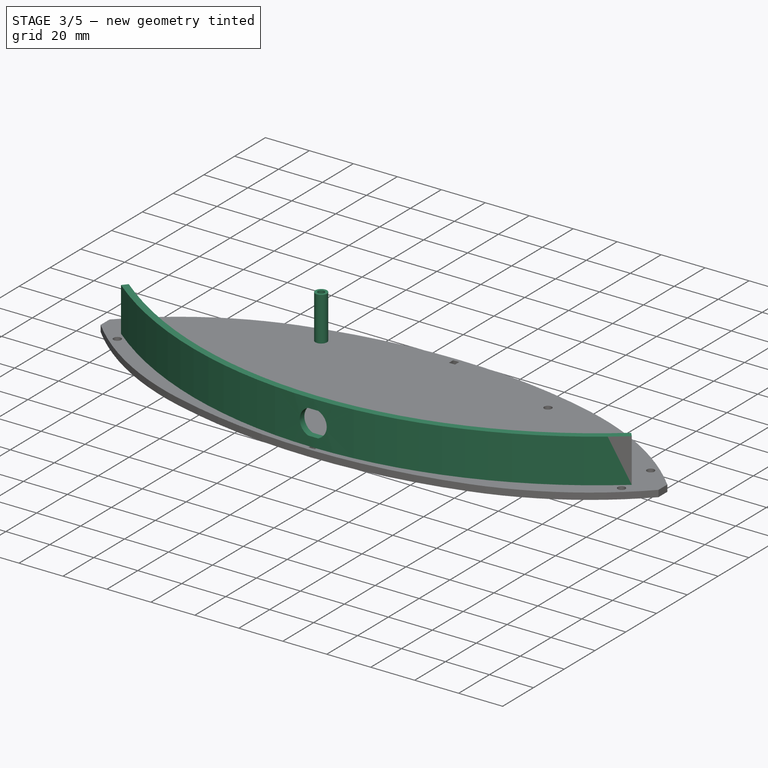
[diagram: stage 3 of 5 — iso view after this stage's code; geometry added in this stage tinted green]
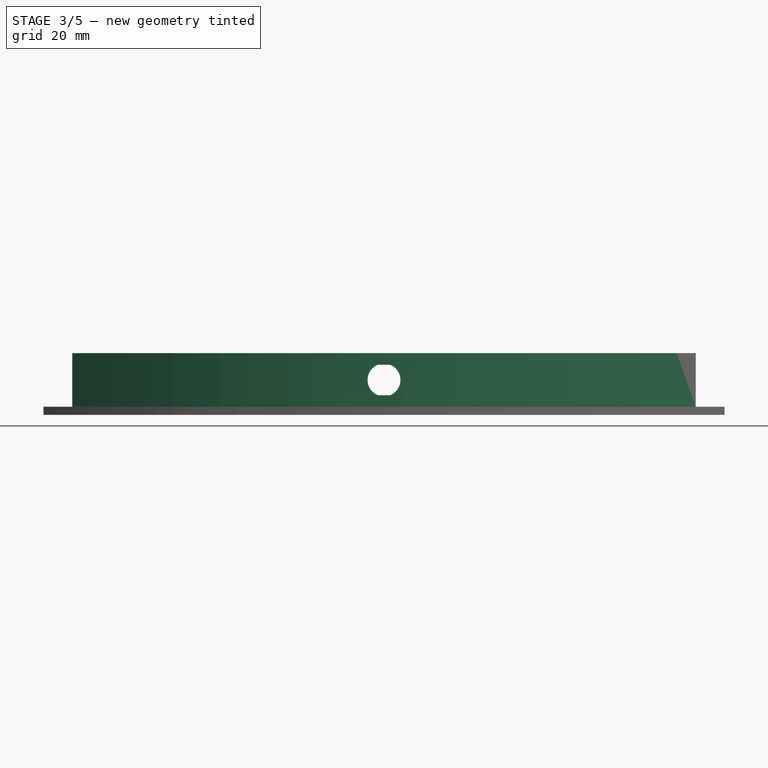
[diagram: stage 3 of 5 — front view after this stage's code; geometry added in this stage tinted green]
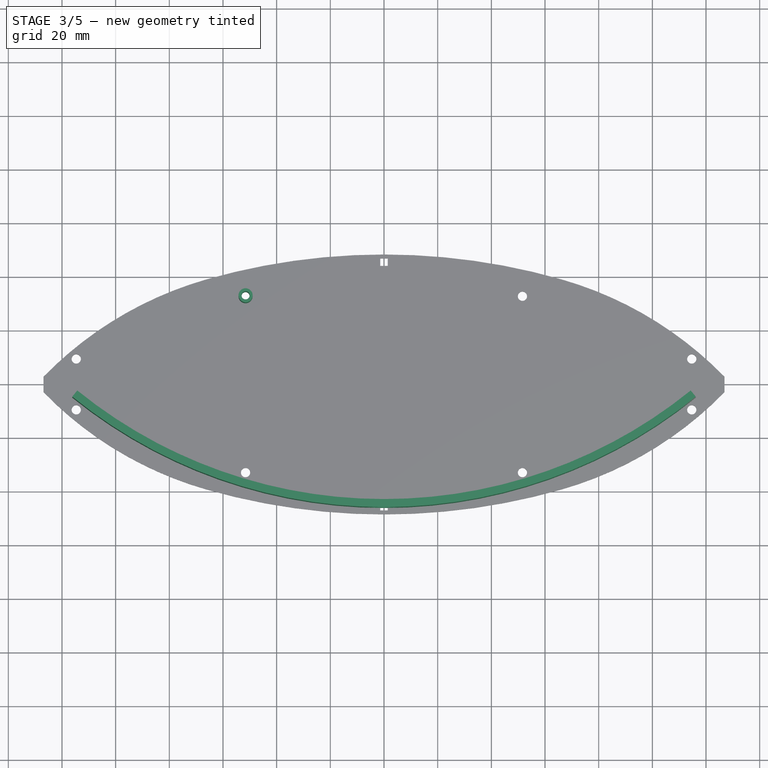
[diagram: stage 3 of 5 — top view after this stage's code; geometry added in this stage tinted green]
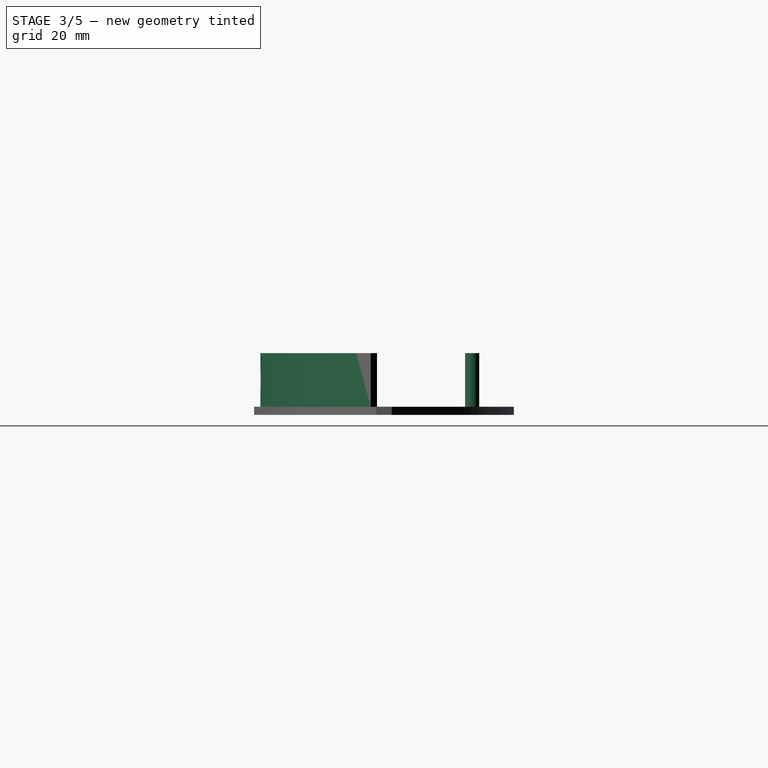
[diagram: stage 3 of 5 — right view after this stage's code; geometry added in this stage tinted green]
FEATURE [PartDesign::Body] Body005
  Group = -> [Sketch033,ShapeBinder001,Pad002]
  Tip = -> Pad002
FEATURE [PartDesign::ShapeBinder] ShapeBinder002
  TraceSupport = false
FEATURE [Sketcher::SketchObject] Sketch034
  AttachmentOffset = pos=(0,0,3) rot=(0,0,1;0rad)
  ExternalGeometry = -> [ShapeBinder002]
  MapMode = 5
  Placement = pos=(0,0,3) rot=(0,0,1;0rad)
  sketch-geometry (2):
    g0: Circle CenterX=-51.5862 CenterY=32.8588 CenterZ=0 NormalX=0 NormalY=0 NormalZ=1 AngleXU=0 Radius=1.5
    g1: Circle CenterX=-51.5862 CenterY=32.8588 CenterZ=0 NormalX=0 NormalY=0 NormalZ=1 AngleXU=0 Radius=2.625
  constraints (4):
    c: Coincident(g1,g0)
    c: Diameter(g0) = 3
    c: Diameter(g1) = 5.25
    c: Coincident(g0,g-5)
FEATURE [PartDesign::Pad] Pad003
  Direction = (1,1,1)
  Length = 20
  Length2 = 100
  Placement = pos=(0,0,3) rot=(0,0,1;0rad)
  Profile = -> Sketch034
  Type = 0
FEATURE [PartDesign::ShapeBinder] ShapeBinder006
  Support = -> [Part__Mirroring001]
  TraceSupport = false
FEATURE [PartDesign::ShapeBinder] ShapeBinder007
  Support = -> [Body005]
  TraceSupport = false
FEATURE [PartDesign::ShapeBinder] ShapeBinder008
  Support = -> [Part__Mirroring003]
  TraceSupport = false
FEATURE [PartDesign::ShapeBinder] ShapeBinder009
  Support = -> [Body007]
  TraceSupport = false
FEATURE [Sketcher::SketchObject] Sketch040
  AttachmentOffset = pos=(0,0,3) rot=(0,0,1;0rad)
  ExternalGeometry = -> [ShapeBinder009,ShapeBinder007,ShapeBinder008,ShapeBinder006]
  MapMode = 5
  Placement = pos=(0,0,3) rot=(0,0,1;0rad)
  Support = -> [XY_Plane006]
  sketch-geometry (4):
    g0: LineSegment StartX=114.3 StartY=-2.60244 StartZ=0 EndX=116.188 EndY=-4.93388 EndZ=0
    g1: ArcOfCircle CenterX=1.63e-14 CenterY=138.546 CenterZ=0 NormalX=0 NormalY=0 NormalZ=1 AngleXU=0 Radius=184.625 StartAngle=4.03171 EndAngle=5.39307
    g2: LineSegment StartX=-116.188 StartY=-4.93388 StartZ=0 EndX=-114.3 EndY=-2.60244 EndZ=0
    g3: ArcOfCircle CenterX=7.1e-15 CenterY=138.546 CenterZ=0 NormalX=0 NormalY=0 NormalZ=1 AngleXU=0 Radius=181.625 StartAngle=4.03171 EndAngle=5.39307
  constraints (10):
    c: Perpendicular(g0,g1) = 1.5708
    c: Coincident(g1,g2)
    c: Perpendicular(g2,g3) = 4.71239
    c: Coincident(g3,g0)
    c: Symmetric(g2,g0,g-2)
    c: Symmetric(g1,g0,g-2)
    c: Distance(g2) = 3
    c: Tangent(g-3,g3)
    c: Tangent(g1,g-6)
    c: Angle(g3) = 1.36136
FEATURE [PartDesign::Pad] Pad007
  Direction = (1,1,1)
  Length = 20
  Length2 = 100
  Profile = -> Sketch040
  Type = 0
FEATURE [PartDesign::Body] Body010
  Group = -> [Sketch041,ShapeBinder010,ShapeBinder011,ShapeBinder012,ShapeBinder013,Pad008]
  Origin = -> Origin007
  Tip = -> Pad008
FEATURE [Sketcher::SketchObject] Sketch042
  AttachmentOffset = pos=(0,0,56) rot=(0,0,1;0rad)
  MapMode = 5
  Placement = pos=(0,-56,-1.24e-14) rot=(1,0,0;1.5708rad)
  Support = -> [XZ_Plane006]
  sketch-geometry (4):
    g0: ArcOfCircle CenterX=0 CenterY=13 CenterZ=0 NormalX=0 NormalY=0 NormalZ=1 AngleXU=0 Radius=6.125 StartAngle=5.09734 EndAngle=7.46903
    g1: LineSegment StartX=-2.3 StartY=18.6768 StartZ=0 EndX=2.3 EndY=18.6768 EndZ=0
    g2: LineSegment StartX=-2.3 StartY=7.32324 StartZ=0 EndX=2.3 EndY=7.32324 EndZ=0
    g3: ArcOfCircle CenterX=0 CenterY=13 CenterZ=0 NormalX=0 NormalY=0 NormalZ=1 AngleXU=0 Radius=6.125 StartAngle=1.95574 EndAngle=4.32744
  constraints (13):
    c: Diameter(g0) = 12.25
    c: Horizontal(g1)
    c: Horizontal(g2)
    c: Equal(g2,g1)
    c: Coincident(g0,g2)
    c: Coincident(g3,g2)
    c: Equal(g0,g3)
    c: Coincident(g0,g3)
    c: DistanceX(g1,g1) = 4.6
    c: Coincident(g1,g0)
    c: Coincident(g3,g1)
    c: PointOnObject(g0,g-2)
    c: DistanceY(g-1,g0) = 13
FEATURE [PartDesign::Pocket] Pocket003
  BaseFeature = -> Pad007
  Length = 5
  Length2 = 100
  Profile = -> Sketch042
  Type = 1
FEATURE [PartDesign::Body] Body009
  Group = -> [Sketch040,ShapeBinder006,ShapeBinder007,ShapeBinder008,ShapeBinder009,Pad007,Sketch042,Pocket003]
  Origin = -> Origin006
  Tip = -> Pocket003
FEATURE [Part::Part2DObjectPython] Shape2DView  # Draft 2D object (typed FeaturePython)
  Base = -> Pocket001
  FuseArch = false
  HiddenLines = false
  InPlace = true
  Projection = (0,0,1)
  ProjectionMode = 0
  SegmentLength = 0.05
  Tessellation = false
  VisibleOnly = false
FEATURE [Sketcher::SketchObject] Sketch043
  sketch-geometry (26):
    g0: ArcOfCircle CenterX=28.3526 CenterY=-93.1228 CenterZ=0 NormalX=0 NormalY=0 NormalZ=1 AngleXU=0 Radius=137.558 StartAngle=0.772461 EndAngle=1.29154
    g1: LineSegment StartX=126.871 StartY=2.87898 StartZ=0 EndX=126.871 EndY=-2.87898 EndZ=0
    g2: ArcOfCircle CenterX=0 CenterY=-192 CenterZ=0 NormalX=0 NormalY=0 NormalZ=1 AngleXU=0 Radius=240.42 StartAngle=1.29154 EndAngle=1.5708
    g3: ArcOfCircle CenterX=0 CenterY=-192 CenterZ=0 NormalX=0 NormalY=0 NormalZ=1 AngleXU=0 Radius=240.42 StartAngle=1.5708 EndAngle=1.85005
    g4: ArcOfCircle CenterX=28.3526 CenterY=93.1229 CenterZ=0 NormalX=0 NormalY=0 NormalZ=1 AngleXU=0 Radius=137.558 StartAngle=4.99164 EndAngle=5.51072
    g5: ArcOfCircle CenterX=0 CenterY=192 CenterZ=0 NormalX=0 NormalY=0 NormalZ=1 AngleXU=0 Radius=240.42 StartAngle=4.71239 EndAngle=4.99164
    g6: ArcOfCircle CenterX=-28.3526 CenterY=-93.1228 CenterZ=0 NormalX=0 NormalY=0 NormalZ=1 AngleXU=0 Radius=137.558 StartAngle=1.85005 EndAngle=2.36913
    g7: ArcOfCircle CenterX=0 CenterY=192 CenterZ=0 NormalX=0 NormalY=0 NormalZ=1 AngleXU=0 Radius=240.42 StartAngle=4.43314 EndAngle=4.71239
    g8: LineSegment StartX=-126.871 StartY=2.87897 StartZ=0 EndX=-126.871 EndY=-2.87897 EndZ=0
    g9: ArcOfCircle CenterX=-28.3526 CenterY=93.1228 CenterZ=0 NormalX=0 NormalY=0 NormalZ=1 AngleXU=0 Radius=137.558 StartAngle=3.91405 EndAngle=4.43314
    g10: Circle CenterX=-51.5862 CenterY=-32.8588 CenterZ=0 NormalX=0 NormalY=0 NormalZ=1 AngleXU=0 Radius=1.7166
    g11: Circle CenterX=-114.683 CenterY=-9.47463 CenterZ=0 NormalX=0 NormalY=0 NormalZ=1 AngleXU=0 Radius=1.7166
    g12: LineSegment StartX=1.39138 StartY=-44.1576 StartZ=0 EndX=-1.39137 EndY=-44.1576 EndZ=0
    g13: LineSegment StartX=-1.39137 StartY=-44.1576 StartZ=0 EndX=-1.39137 EndY=-46.9403 EndZ=0
    g14: LineSegment StartX=-1.39137 StartY=-46.9403 StartZ=0 EndX=1.39138 EndY=-46.9403 EndZ=0
    g15: LineSegment StartX=1.39138 StartY=-46.9403 StartZ=0 EndX=1.39138 EndY=-44.1576 EndZ=0
    g16: Circle CenterX=51.5862 CenterY=-32.8588 CenterZ=0 NormalX=0 NormalY=0 NormalZ=-1 AngleXU=0 Radius=1.7166
    g17: Circle CenterX=114.683 CenterY=-9.47463 CenterZ=0 NormalX=0 NormalY=0 NormalZ=-1 AngleXU=0 Radius=1.7166
    g18: Circle CenterX=-114.683 CenterY=9.47463 CenterZ=0 NormalX=0 NormalY=0 NormalZ=-1 AngleXU=-3.14159 Radius=1.7166
    g19: Circle CenterX=-51.5862 CenterY=32.8588 CenterZ=0 NormalX=0 NormalY=0 NormalZ=-1 AngleXU=-3.14159 Radius=1.7166
    g20: Circle CenterX=114.683 CenterY=9.47463 CenterZ=0 NormalX=0 NormalY=0 NormalZ=1 AngleXU=-3.14159 Radius=1.7166
    g21: Circle CenterX=51.5862 CenterY=32.8588 CenterZ=0 NormalX=0 NormalY=0 NormalZ=1 AngleXU=-3.14159 Radius=1.7166
    g22: LineSegment StartX=1.39137 StartY=46.9403 StartZ=0 EndX=-1.39137 EndY=46.9403 EndZ=0
    g23: LineSegment StartX=-1.39137 StartY=46.9403 StartZ=0 EndX=-1.39137 EndY=44.1576 EndZ=0
    g24: LineSegment StartX=-1.39137 StartY=44.1576 StartZ=0 EndX=1.39137 EndY=44.1576 EndZ=0
    g25: LineSegment StartX=1.39137 StartY=44.1576 StartZ=0 EndX=1.39137 EndY=46.9403 EndZ=0
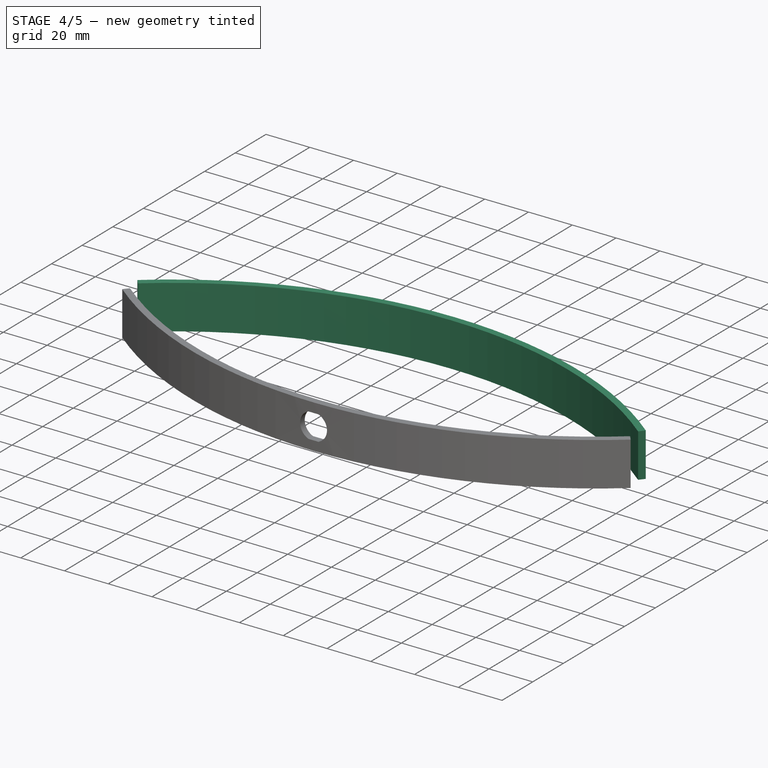
[diagram: stage 4 of 5 — iso view after this stage's code; geometry added in this stage tinted green]
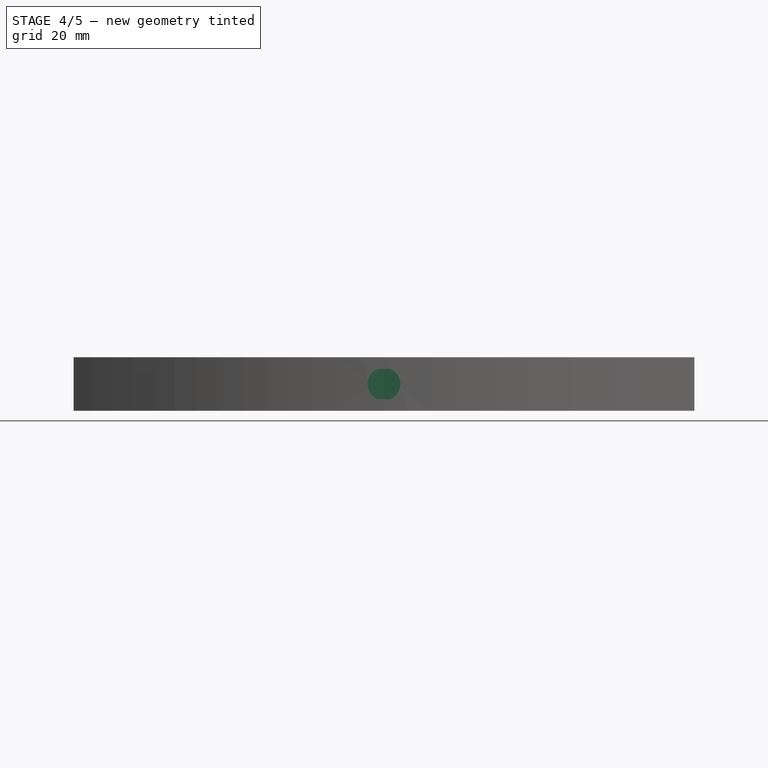
[diagram: stage 4 of 5 — front view after this stage's code; geometry added in this stage tinted green]
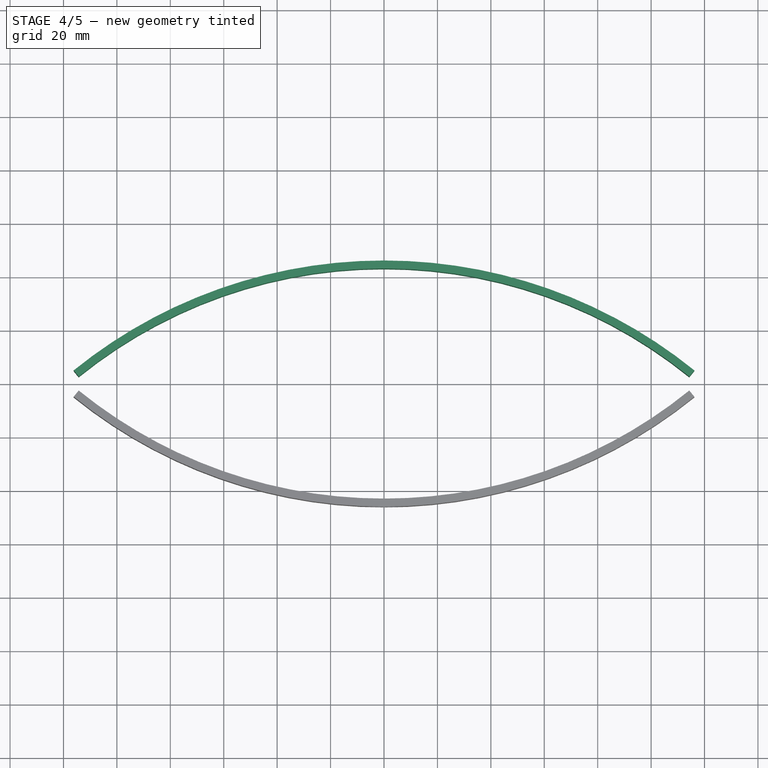
[diagram: stage 4 of 5 — top view after this stage's code; geometry added in this stage tinted green]
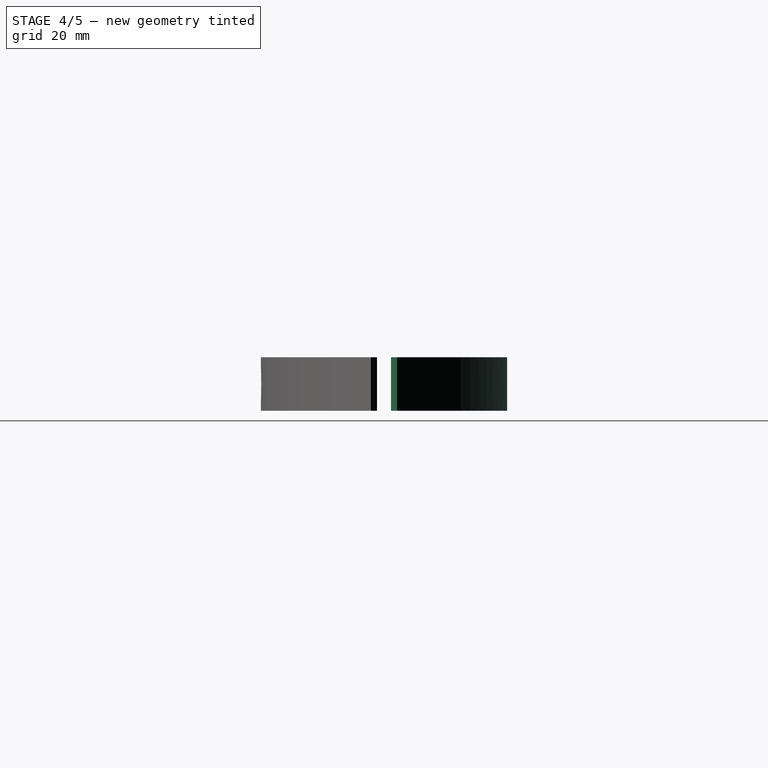
[diagram: stage 4 of 5 — right view after this stage's code; geometry added in this stage tinted green]
FEATURE [PartDesign::Body] Body  label="Body_bottom"
  Group = -> [Sketch,Sketch001,Sketch002,Sketch003,Sketch004,Sketch005,Sketch006,Sketch007,Sketch008,Sketch009,Sketch010,Sketch011,Sketch027,Sketch028,Sketch029,Pad,Sketch030,Pocket,MultiTransform,Mirrored,Mirrored001,Sketch031,Pocket001]
  Origin = -> Origin
  Tip = -> Pocket001
FEATURE [PartDesign::ShapeBinder] ShapeBinder
  Support = -> [Pocket001]
  TraceSupport = false
FEATURE [Sketcher::SketchObject] Sketch032
  AttachmentOffset = pos=(0,0,3) rot=(0,0,1;0rad)
  ExternalGeometry = -> [ShapeBinder]
  MapMode = 5
  Placement = pos=(0,0,3) rot=(0,0,1;0rad)
  Support = -> [XY_Plane004]
  sketch-geometry (2):
    g0: Circle CenterX=-114.683 CenterY=9.47463 CenterZ=0 NormalX=0 NormalY=0 NormalZ=1 AngleXU=0 Radius=1.5
    g1: Circle CenterX=-114.683 CenterY=9.47463 CenterZ=0 NormalX=0 NormalY=0 NormalZ=1 AngleXU=0 Radius=2.625
  constraints (4):
    c: Coincident(g1,g0)
    c: Diameter(g0) = 3
    c: Diameter(g1) = 5.25
    c: Coincident(g-3,g0)
FEATURE [PartDesign::Pad] Pad001
  Direction = (1,1,1)
  Length = 20
  Length2 = 100
  Profile = -> Sketch032
  Type = 0
FEATURE [PartDesign::Body] Body007
  Group = -> [Sketch035,ShapeBinder003,Pad004]
  Tip = -> Pad004
FEATURE [Part::Mirroring] Part__Mirroring  label="Body004 (Mirror #1)"
  Base = (0,0,0)
  Normal = (1,0,0)
  Source = -> Body004
FEATURE [Part::Mirroring] Part__Mirroring002  label="Body006 (Mirror #3)"
  Base = (0,0,0)
  Normal = (1,0,0)
  Source = -> Body006
FEATURE [PartDesign::ShapeBinder] ShapeBinder010
  Support = -> [Part__Mirroring]
  TraceSupport = false
FEATURE [PartDesign::ShapeBinder] ShapeBinder011
  Support = -> [Body004]
  TraceSupport = false
FEATURE [PartDesign::ShapeBinder] ShapeBinder012
  Support = -> [Part__Mirroring002]
  TraceSupport = false
FEATURE [PartDesign::ShapeBinder] ShapeBinder013
  Support = -> [Body006]
  TraceSupport = false
FEATURE [Sketcher::SketchObject] Sketch041
  AttachmentOffset = pos=(0,0,3) rot=(0,0,1;0rad)
  ExternalGeometry = -> [ShapeBinder013,ShapeBinder011,ShapeBinder012,ShapeBinder010]
  MapMode = 5
  Placement = pos=(0,0,3) rot=(0,0,1;0rad)
  Support = -> [XY_Plane007]
  sketch-geometry (4):
    g0: LineSegment StartX=-114.3 StartY=2.60244 StartZ=0 EndX=-116.188 EndY=4.93388 EndZ=0
    g1: ArcOfCircle CenterX=-3.8e-15 CenterY=-138.546 CenterZ=0 NormalX=0 NormalY=0 NormalZ=1 AngleXU=0 Radius=184.625 StartAngle=0.890118 EndAngle=2.25147
    g2: LineSegment StartX=116.188 StartY=4.93388 StartZ=0 EndX=114.3 EndY=2.60244 EndZ=0
    g3: ArcOfCircle CenterX=1e-15 CenterY=-138.546 CenterZ=0 NormalX=0 NormalY=0 NormalZ=1 AngleXU=0 Radius=181.625 StartAngle=0.890118 EndAngle=2.25147
  constraints (10):
    c: Perpendicular(g0,g1) = 1.5708
    c: Perpendicular(g1,g2) = 1.5708
    c: Perpendicular(g2,g3) = 4.71239
    c: Coincident(g3,g0)
    c: Equal(g0,g2)
    c: Distance(g2) = 3
    c: Tangent(g-5,g3)
    c: Tangent(g1,g-4)
    c: Symmetric(g2,g0,g-2)
    c: Angle(g3) = 1.36136
FEATURE [PartDesign::Pad] Pad008
  Direction = (1,1,1)
  Length = 20
  Length2 = 100
  Profile = -> Sketch041
  Type = 0
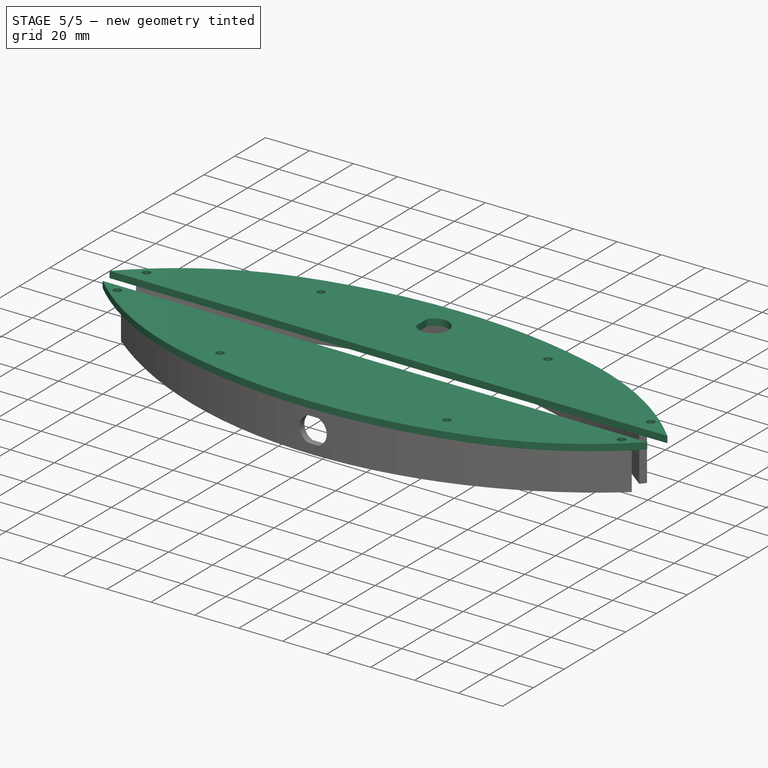
[diagram: stage 5 of 5 — iso view after this stage's code; geometry added in this stage tinted green]
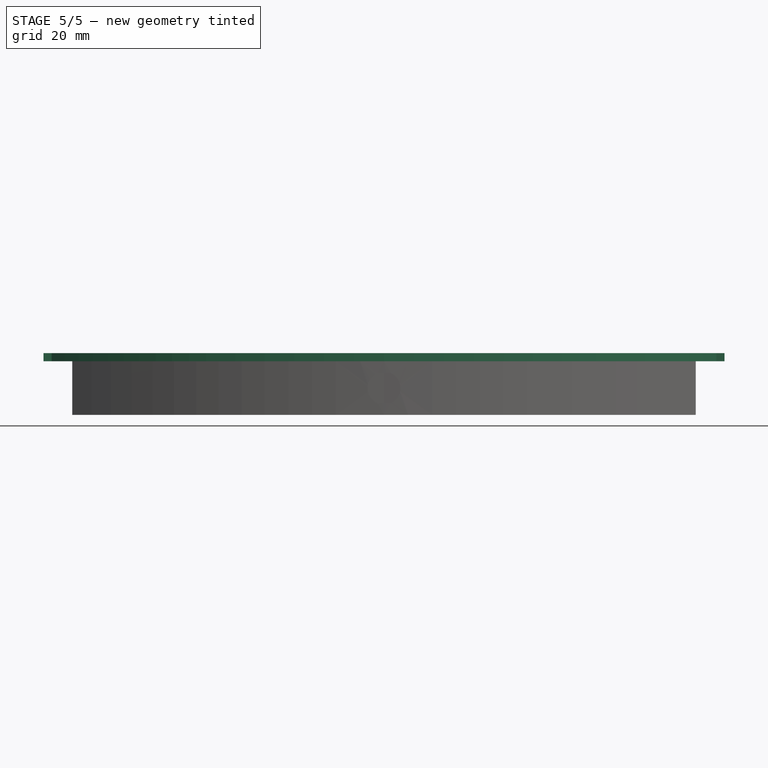
[diagram: stage 5 of 5 — front view after this stage's code; geometry added in this stage tinted green]
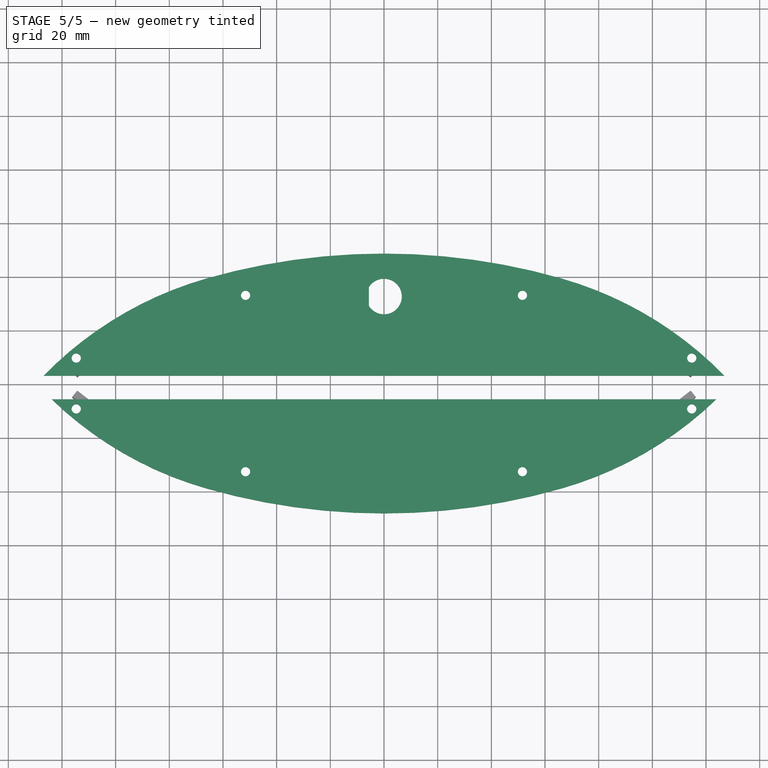
[diagram: stage 5 of 5 — top view after this stage's code; geometry added in this stage tinted green]
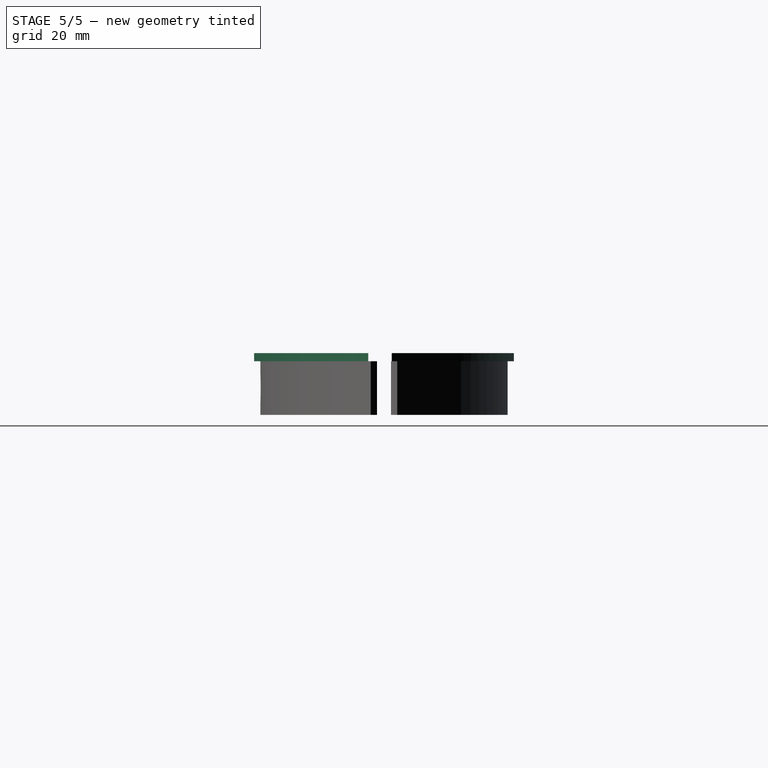
[diagram: stage 5 of 5 — right view after this stage's code; geometry added in this stage tinted green]
FEATURE [Sketcher::SketchObject] Sketch036
  sketch-geometry (52):
    g0: BSplineCurve PolesCount=3 KnotsCount=2 Degree=2 IsPeriodic=0
    g1: BSplineCurve PolesCount=3 KnotsCount=2 Degree=2 IsPeriodic=0
    g2: BSplineCurve PolesCount=3 KnotsCount=2 Degree=2 IsPeriodic=0
    g3: BSplineCurve PolesCount=3 KnotsCount=2 Degree=2 IsPeriodic=0
    g4: BSplineCurve PolesCount=3 KnotsCount=2 Degree=2 IsPeriodic=0
    g5: BSplineCurve PolesCount=3 KnotsCount=2 Degree=2 IsPeriodic=0
    g6: BSplineCurve PolesCount=3 KnotsCount=2 Degree=2 IsPeriodic=0
    g7: BSplineCurve PolesCount=3 KnotsCount=2 Degree=2 IsPeriodic=0
    g8: BSplineCurve PolesCount=3 KnotsCount=2 Degree=2 IsPeriodic=0
    g9: BSplineCurve PolesCount=3 KnotsCount=2 Degree=2 IsPeriodic=0
    g10: BSplineCurve PolesCount=3 KnotsCount=2 Degree=2 IsPeriodic=0
    g11: BSplineCurve PolesCount=3 KnotsCount=2 Degree=2 IsPeriodic=0
    g12: BSplineCurve PolesCount=3 KnotsCount=2 Degree=2 IsPeriodic=0
    g13: BSplineCurve PolesCount=3 KnotsCount=2 Degree=2 IsPeriodic=0
    g14: BSplineCurve PolesCount=3 KnotsCount=2 Degree=2 IsPeriodic=0
    g15: BSplineCurve PolesCount=3 KnotsCount=2 Degree=2 IsPeriodic=0
    g16: BSplineCurve PolesCount=3 KnotsCount=2 Degree=2 IsPeriodic=0
    g17: BSplineCurve PolesCount=3 KnotsCount=2 Degree=2 IsPeriodic=0
    g18: BSplineCurve PolesCount=3 KnotsCount=2 Degree=2 IsPeriodic=0
    g19: BSplineCurve PolesCount=3 KnotsCount=2 Degree=2 IsPeriodic=0
    g20: BSplineCurve PolesCount=3 KnotsCount=2 Degree=2 IsPeriodic=0
    g21: BSplineCurve PolesCount=3 KnotsCount=2 Degree=2 IsPeriodic=0
    g22: BSplineCurve PolesCount=3 KnotsCount=2 Degree=2 IsPeriodic=0
    g23: BSplineCurve PolesCount=3 KnotsCount=2 Degree=2 IsPeriodic=0
    g24: BSplineCurve PolesCount=3 KnotsCount=2 Degree=2 IsPeriodic=0
    g25: BSplineCurve PolesCount=3 KnotsCount=2 Degree=2 IsPeriodic=0
    g26: BSplineCurve PolesCount=3 KnotsCount=2 Degree=2 IsPeriodic=0
    g27: BSplineCurve PolesCount=3 KnotsCount=2 Degree=2 IsPeriodic=0
    g28: BSplineCurve PolesCount=3 KnotsCount=2 Degree=2 IsPeriodic=0
    g29: BSplineCurve PolesCount=3 KnotsCount=2 Degree=2 IsPeriodic=0
    g30: BSplineCurve PolesCount=3 KnotsCount=2 Degree=2 IsPeriodic=0
    g31: BSplineCurve PolesCount=3 KnotsCount=2 Degree=2 IsPeriodic=0
    g32: BSplineCurve PolesCount=3 KnotsCount=2 Degree=2 IsPeriodic=0
    g33: BSplineCurve PolesCount=3 KnotsCount=2 Degree=2 IsPeriodic=0
    g34: BSplineCurve PolesCount=3 KnotsCount=2 Degree=2 IsPeriodic=0
    g35: BSplineCurve PolesCount=3 KnotsCount=2 Degree=2 IsPeriodic=0
    g36: BSplineCurve PolesCount=4 KnotsCount=2 Degree=3 IsPeriodic=0
    g37: BSplineCurve PolesCount=4 KnotsCount=2 Degree=3 IsPeriodic=0
    g38: BSplineCurve PolesCount=4 KnotsCount=2 Degree=3 IsPeriodic=0
    g39: BSplineCurve PolesCount=4 KnotsCount=2 Degree=3 IsPeriodic=0
    g40: BSplineCurve PolesCount=2 KnotsCount=2 Degree=1 IsPeriodic=0
    g41: BSplineCurve PolesCount=2 KnotsCount=2 Degree=1 IsPeriodic=0
    g42: BSplineCurve PolesCount=2 KnotsCount=2 Degree=1 IsPeriodic=0
    g43: BSplineCurve PolesCount=2 KnotsCount=2 Degree=1 IsPeriodic=0
    g44: BSplineCurve PolesCount=2 KnotsCount=2 Degree=1 IsPeriodic=0
    g45: LineSegment StartX=-126.871 StartY=2.87898 StartZ=0 EndX=-126.871 EndY=-5e-07 EndZ=0
    g46: LineSegment StartX=-126.871 StartY=-5e-07 StartZ=0 EndX=-126.871 EndY=-2.87898 EndZ=0
    g47: LineSegment StartX=126.871 StartY=2.87898 StartZ=0 EndX=126.871 EndY=0 EndZ=0
    g48: LineSegment StartX=126.871 StartY=-2.87897 StartZ=0 EndX=126.871 EndY=0 EndZ=0
    g49: LineSegment StartX=-126.871 StartY=-5e-07 StartZ=0 EndX=126.871 EndY=0 EndZ=0
    g50: LineSegment StartX=8.886e-08 StartY=48.42 StartZ=0 EndX=8.886e-08 EndY=-2.5e-07 EndZ=0
    g51: LineSegment StartX=8.886e-08 StartY=-48.42 StartZ=0 EndX=8.886e-08 EndY=-2.5e-07 EndZ=0
  constraints (65):
    c: Coincident(g0,g1)
    c: Coincident(g2,g3)
    c: Coincident(g4,g5)
    c: Coincident(g5,g6)
    c: Coincident(g6,g7)
    c: Coincident(g7,g4)
    c: Coincident(g8,g9)
    c: Coincident(g9,g10)
    c: Coincident(g10,g11)
    c: Coincident(g11,g8)
    c: Coincident(g12,g13)
    c: Coincident(g13,g14)
    c: Coincident(g14,g15)
    c: Coincident(g15,g12)
    c: Coincident(g16,g17)
    c: Coincident(g17,g18)
    c: Coincident(g18,g19)
    c: Coincident(g19,g16)
    c: Coincident(g20,g21)
    c: Coincident(g21,g22)
    c: Coincident(g22,g23)
    c: Coincident(g23,g20)
    c: Coincident(g24,g25)
    c: Coincident(g25,g26)
    c: Coincident(g26,g27)
    c: Coincident(g27,g24)
    c: Coincident(g28,g29)
    c: Coincident(g29,g30)
    c: Coincident(g30,g31)
    c: Coincident(g31,g28)
    c: Coincident(g32,g33)
    c: Coincident(g33,g34)
    c: Coincident(g34,g35)
    c: Coincident(g35,g32)
    c: Coincident(g36,g37)
    c: Coincident(g37,g38)
    c: Coincident(g38,g39)
    c: Coincident(g39,g40)
    c: Coincident(g40,g36)
    c: Coincident(g41,g42)
    c: Coincident(g42,g43)
    c: Coincident(g43,g44)
    c: Coincident(g44,g41)
    c: Coincident(g45,g0)
    c: Vertical(g45)
    c: Coincident(g46,g45)
    c: Coincident(g46,g2)
    c: Block(g0)
    c: Block(g2)
    c: Coincident(g47,g1)
    c: Vertical(g47)
    c: Coincident(g48,g3)
    c: Coincident(g48,g47)
    c: Block(g1)
    c: Block(g3)
    c: Equal(g47,g48)
    c: Equal(g45,g46)
    c: Coincident(g49,g45)
    c: Coincident(g49,g47)
    c: Coincident(g50,g0)
    c: PointOnObject(g50,g49)
    c: Vertical(g50)
    c: Coincident(g51,g2)
    c: Coincident(g51,g50)
    c: DistanceY(g41,g42) = 8.73
FEATURE [PartDesign::ShapeBinder] ShapeBinder004
  Support = -> [Pocket001]
  TraceSupport = false
FEATURE [Sketcher::SketchObject] Sketch037
  ExternalGeometry = -> [ShapeBinder004]
  MapMode = 5
  Support = -> [XY_Plane003]
  sketch-geometry (18):
    g0: ArcOfCircle CenterX=-28.3526 CenterY=-93.1228 CenterZ=0 NormalX=0 NormalY=0 NormalZ=1 AngleXU=0 Radius=137.558 StartAngle=1.85005 EndAngle=2.36913
    g1: ArcOfCircle CenterX=0 CenterY=-192 CenterZ=0 NormalX=0 NormalY=0 NormalZ=1 AngleXU=0 Radius=240.42 StartAngle=1.5708 EndAngle=1.85005
    g2: ArcOfCircle CenterX=0 CenterY=-192 CenterZ=0 NormalX=0 NormalY=0 NormalZ=1 AngleXU=0 Radius=240.42 StartAngle=1.29154 EndAngle=1.5708
    g3: ArcOfCircle CenterX=28.3526 CenterY=-93.1228 CenterZ=0 NormalX=0 NormalY=0 NormalZ=1 AngleXU=0 Radius=137.558 StartAngle=0.772461 EndAngle=1.29154
    g4: ArcOfCircle CenterX=28.3526 CenterY=93.1229 CenterZ=0 NormalX=0 NormalY=0 NormalZ=1 AngleXU=0 Radius=137.558 StartAngle=4.99164 EndAngle=5.51072
    g5: ArcOfCircle CenterX=0 CenterY=192 CenterZ=0 NormalX=0 NormalY=0 NormalZ=1 AngleXU=0 Radius=240.42 StartAngle=4.71239 EndAngle=4.99164
    g6: ArcOfCircle CenterX=0 CenterY=192 CenterZ=0 NormalX=0 NormalY=0 NormalZ=1 AngleXU=0 Radius=240.42 StartAngle=4.43314 EndAngle=4.71239
    g7: ArcOfCircle CenterX=-28.3526 CenterY=93.1228 CenterZ=0 NormalX=0 NormalY=0 NormalZ=1 AngleXU=0 Radius=137.558 StartAngle=3.91405 EndAngle=4.43314
    g8: LineSegment StartX=-126.871 StartY=-2.87897 StartZ=0 EndX=-126.871 EndY=2.87897 EndZ=0
    g9: LineSegment StartX=126.871 StartY=-2.87898 StartZ=0 EndX=126.871 EndY=2.87898 EndZ=0
    g10: Circle CenterX=114.683 CenterY=9.47463 CenterZ=0 NormalX=0 NormalY=0 NormalZ=1 AngleXU=0 Radius=1.7166
    g11: Circle CenterX=114.683 CenterY=-9.47463 CenterZ=0 NormalX=0 NormalY=0 NormalZ=1 AngleXU=0 Radius=1.7166
    g12: Circle CenterX=51.5862 CenterY=32.8588 CenterZ=0 NormalX=0 NormalY=0 NormalZ=1 AngleXU=0 Radius=1.7166
    g13: Circle CenterX=-51.5862 CenterY=32.8588 CenterZ=0 NormalX=0 NormalY=0 NormalZ=1 AngleXU=0 Radius=1.7166
    g14: Circle CenterX=-114.683 CenterY=9.47463 CenterZ=0 NormalX=0 NormalY=0 NormalZ=1 AngleXU=0 Radius=1.7166
    g15: Circle CenterX=-114.683 CenterY=-9.47463 CenterZ=0 NormalX=0 NormalY=0 NormalZ=1 AngleXU=0 Radius=1.7166
    g16: Circle CenterX=-51.5862 CenterY=-32.8588 CenterZ=0 NormalX=0 NormalY=0 NormalZ=1 AngleXU=0 Radius=1.7166
    g17: Circle CenterX=51.5862 CenterY=-32.8588 CenterZ=0 NormalX=0 NormalY=0 NormalZ=1 AngleXU=0 Radius=1.7166
  constraints (44):
    c: Coincident(g0,g-3)
    c: Coincident(g0,g-12)
    c: Coincident(g0,g-4)
    c: Coincident(g1,g-5)
    c: Coincident(g1,g0)
    c: Coincident(g1,g-5)
    c: Coincident(g2,g1)
    c: Coincident(g2,g1)
    c: Coincident(g2,g-6)
    c: Coincident(g3,g-6)
    c: Coincident(g3,g2)
    c: Coincident(g3,g-7)
    c: Coincident(g4,g-8)
    c: Coincident(g4,g-9)
    c: Coincident(g4,g-8)
    c: Coincident(g5,g-10)
    c: Coincident(g5,g4)
    c: Coincident(g5,g-10)
    c: Coincident(g6,g5)
    c: Coincident(g6,g5)
    c: Coincident(g6,g-11)
    c: Coincident(g7,g-11)
    c: Coincident(g7,g6)
    c: Coincident(g7,g-12)
    c: Coincident(g8,g7)
    c: Coincident(g8,g0)
    c: Coincident(g9,g4)
    c: Coincident(g9,g3)
    c: Coincident(g10,g-19)
    c: Coincident(g11,g-20)
    c: Equal(g11,g-20)
    c: Equal(g10,g-19)
    c: Coincident(g12,g-17)
    c: Equal(g12,g-17)
    c: Coincident(g13,g-15)
    c: Equal(g-15,g13)
    c: Coincident(g14,g-13)
    c: Equal(g14,g-13)
    c: Coincident(g15,g-14)
    c: Equal(g-14,g15)
    c: Coincident(g16,g-16)
    c: Equal(g-16,g16)
    c: Tangent(g17,g-18) = -1.5708
    c: Equal(g-18,g17)
FEATURE [PartDesign::Pad] Pad005
  Direction = (1,1,1)
  Length = 3
  Length2 = 100
  Profile = -> Sketch037
  Refine = true
  Type = 0
FEATURE [Sketcher::SketchObject] Sketch038
  ExternalGeometry = -> [ShapeBinder004]
  MapMode = 5
  Placement = pos=(0,0,3) rot=(0,0,1;0rad)
  Support = -> [Pad005]
  sketch-geometry (2):
    g0: ArcOfCircle CenterX=0 CenterY=32.42 CenterZ=0 NormalX=0 NormalY=0 NormalZ=1 AngleXU=0 Radius=6.625 StartAngle=3.69819 EndAngle=8.86818
    g1: LineSegment StartX=-5.625 StartY=35.92 StartZ=0 EndX=-5.625 EndY=28.92 EndZ=0
  constraints (7):
    c: Diameter(g0) = 13.25
    c: DistanceY(g0,g-3) = 16
    c: PointOnObject(g0,g-2)
    c: Vertical(g1)
    c: Coincident(g0,g1)
    c: Coincident(g0,g1)
    c: DistanceY(g1,g1) = 7
FEATURE [PartDesign::Pocket] Pocket002
  BaseFeature = -> Pad005
  Length = 5
  Length2 = 100
  Profile = -> Sketch038
  Type = 1
FEATURE [PartDesign::Body] Body003  label="Body_top"
  Group = -> [Sketch015,Sketch016,Sketch017,Sketch018,Sketch019,Sketch020,Sketch021,Sketch022,Sketch023,Sketch024,Sketch025,Sketch026,Sketch036,ShapeBinder004,Sketch037,Pad005,Sketch038,Pocket002]
  Origin = -> Origin003
  Placement = pos=(0,0,23) rot=(0,0,1;0rad)
  Tip = -> Pocket002
FEATURE [PartDesign::ShapeBinder] ShapeBinder005
  Support = -> [Pocket002]
  TraceSupport = false
FEATURE [Sketcher::SketchObject] Sketch039
  ExternalGeometry = -> [ShapeBinder005]
  MapMode = 5
  Support = -> [XY_Plane005]
  sketch-geometry (4):
    g0: LineSegment StartX=-127.871 StartY=2.87898 StartZ=0 EndX=127.871 EndY=2.87898 EndZ=0
    g1: LineSegment StartX=127.871 StartY=2.87898 StartZ=0 EndX=127.871 EndY=-5.87102 EndZ=0
    g2: LineSegment StartX=127.871 StartY=-5.87102 StartZ=0 EndX=-127.871 EndY=-5.87102 EndZ=0
    g3: LineSegment StartX=-127.871 StartY=-5.87102 StartZ=0 EndX=-127.871 EndY=2.87898 EndZ=0
  constraints (12):
    c: Coincident(g0,g1)
    c: Coincident(g1,g2)
    c: Coincident(g2,g3)
    c: Coincident(g3,g0)
    c: Horizontal(g0)
    c: Horizontal(g2)
    c: Vertical(g1)
    c: Vertical(g3)
    c: DistanceY(g3,g3) = 8.75
    c: PointOnObject(g-4,g0)
    c: DistanceX(g-4,g0) = 1
    c: DistanceX(g0,g-3) = 1
FEATURE [PartDesign::Pad] Pad006
  Direction = (1,1,1)
  Length = 5
  Length2 = 100
  Profile = -> Sketch039
  Type = 0
FEATURE [PartDesign::Body] Body008
  Group = -> [Sketch039,ShapeBinder005,Pad006]
  Origin = -> Origin005
  Placement = pos=(0,0,22) rot=(0,0,1;0rad)
  Tip = -> Pad006
FEATURE [Part::Cut] Cut
  Base = -> Body003
  Tool = -> Body008
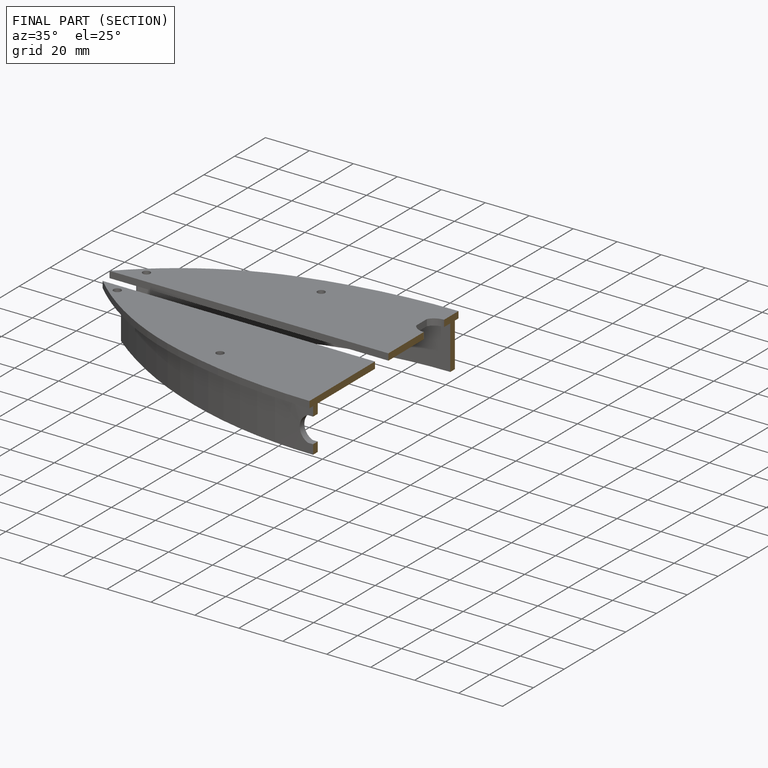
[diagram: finished part — half-section view (interior)]
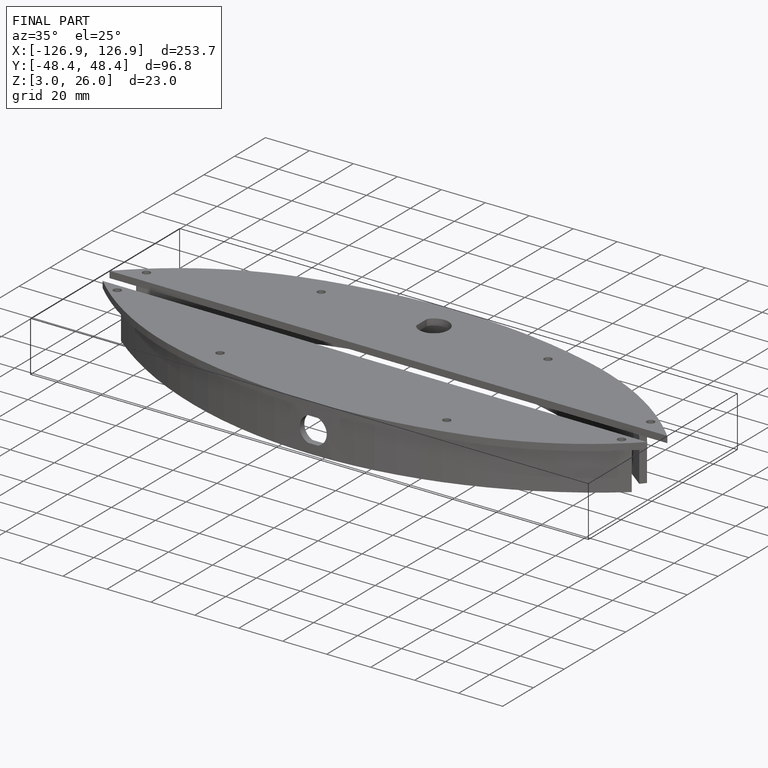
[diagram: finished part — iso view with bounding-box wireframe]
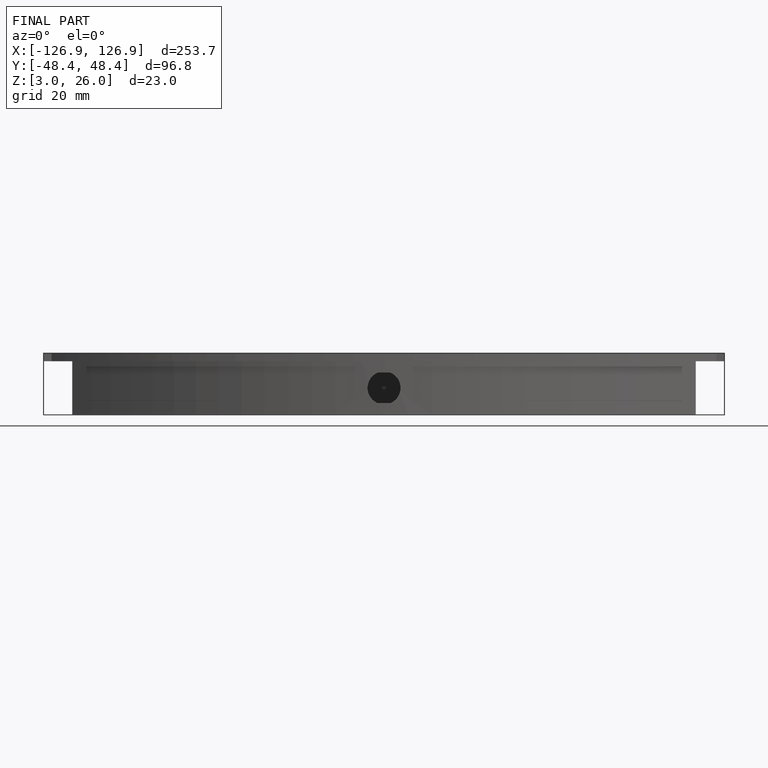
[diagram: finished part — front view with bounding-box wireframe]
